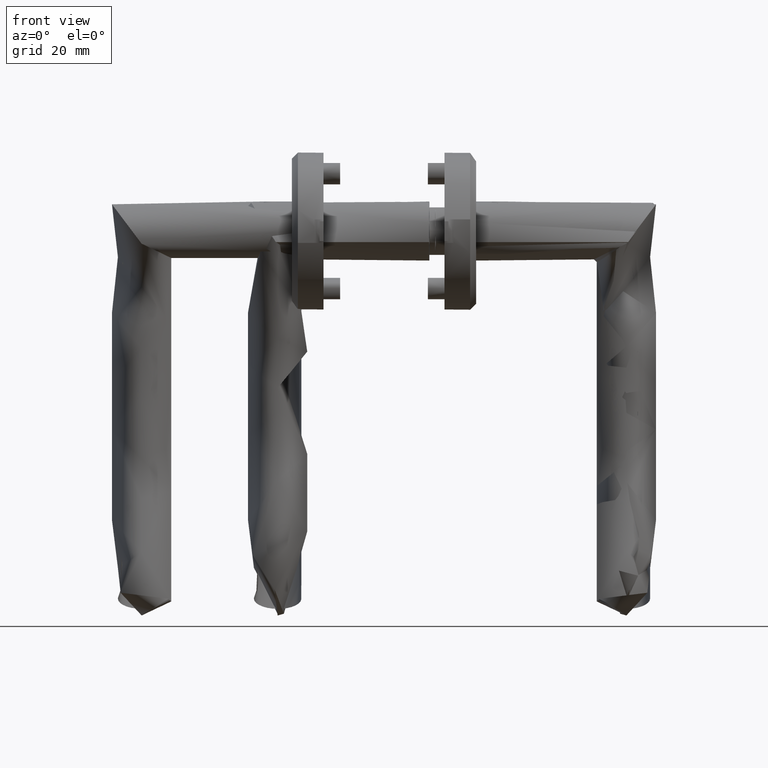
[diagram: clean part render]
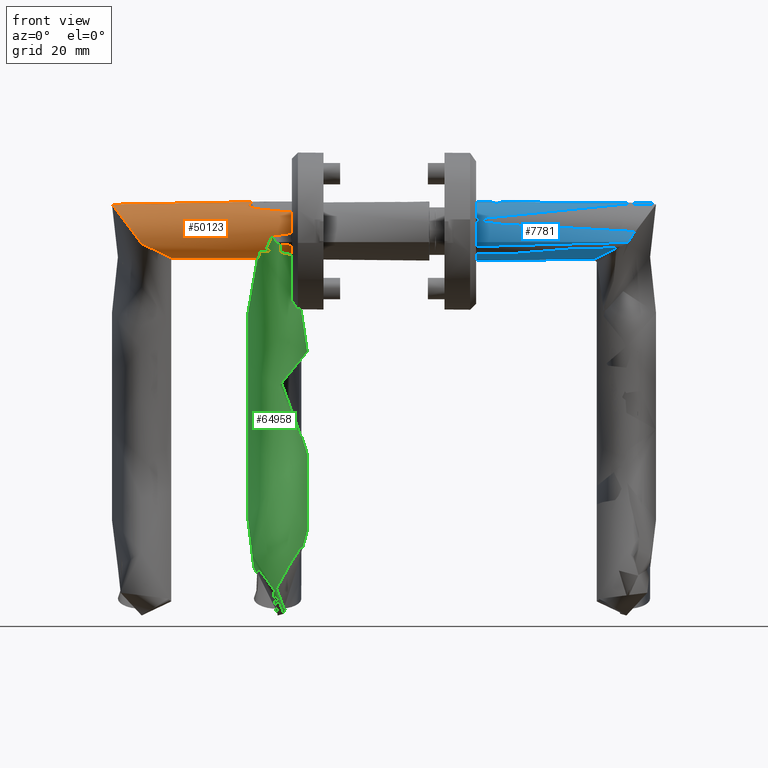
[diagram: same view with three faces highlighted in distinct colors, each labeled with its STEP entity id]
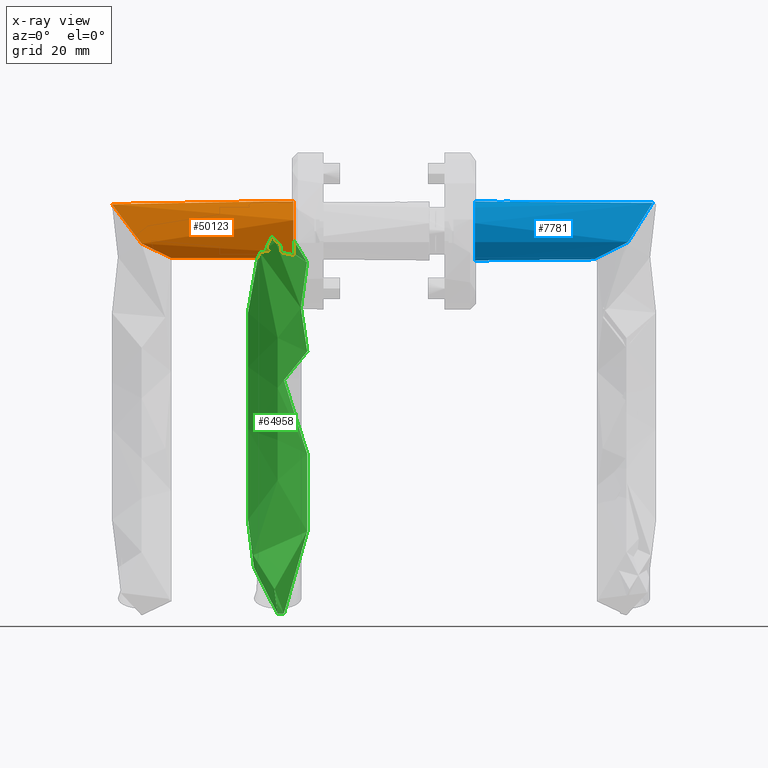
[diagram: x-ray of the same camera — body ghosted, the three highlighted faces saturated]
A machine part, front view with three faces highlighted in distinct colors.
The next image is the same camera in x-ray (body ghosted, the three faces saturated) — at least one of them is partly hidden behind the body in this view.
Their STEP definitions:

[orange] entity #50123 — the highlighted cylindrical surface (bore or boss wall) has radius 9.8 mm, axis along (1, -0, 0).
#177 = CARTESIAN_POINT ( 'NONE',  ( -10.37647058823528900, 21.90588235294118400, 40.40235294117649500 ) ) ;
#2644 = CARTESIAN_POINT ( 'NONE',  ( -0.2029243739203563400, 1.997646156598978700, 9.037793714554512200 ) ) ;
#3211 = CARTESIAN_POINT ( 'NONE',  ( -0.06198656234479537500, 1.110938121098266500, 9.745581607782954200 ) ) ;
#4046 = CARTESIAN_POINT ( 'NONE',  ( -0.07973867492358499600, -1.255165081136400600, 9.668275101107786500 ) ) ;
#4609 = CARTESIAN_POINT ( 'NONE',  ( -0.004208627328964136700, -0.3293675719675003300, 9.983646918597319300 ) ) ;
#4809 = FACE_BOUND ( 'NONE', #55713, .T. ) ;
#7937 = CYLINDRICAL_SURFACE ( 'NONE', #81682, 9.799999999999998900 ) ;
#8828 = EDGE_CURVE ( 'NONE', #19401, #19401, #36724, .T. ) ;
#10772 = CARTESIAN_POINT ( 'NONE',  ( -0.02035144488383974400, -0.6515257115221754200, 9.919193927932873600 ) ) ;
#11061 = CARTESIAN_POINT ( 'NONE',  ( -0.2603281164761319700, -2.244750030947460400, 6.387240606803052500 ) ) ;
#11352 = CARTESIAN_POINT ( 'NONE',  ( -0.2910079100899638500, -2.371352310552510300, 6.691405919002653100 ) ) ;
#11651 = CARTESIAN_POINT ( 'NONE',  ( -0.3242138757993612800, 2.499895465810964400, 7.665386559907910100 ) ) ;
#14252 = CARTESIAN_POINT ( 'NONE',  ( -18.67764705882352800, 4.150588235294116600, 40.40235294117649500 ) ) ;
#16518 = CARTESIAN_POINT ( 'NONE',  ( -9.799999999999995400, 0.0000000000000000000, 77.92093876368919300 ) ) ;
#17292 = CARTESIAN_POINT ( 'NONE',  ( -0.3199001735057092100, 2.483707475874418900, 7.171346478314733400 ) ) ;
#17475 = ORIENTED_EDGE ( 'NONE', *, *, #83461, .T. ) ;
#17567 = CARTESIAN_POINT ( 'NONE',  ( -0.3242687684830996000, 2.500103525782658500, 7.337788981417685500 ) ) ;
#17856 = CARTESIAN_POINT ( 'NONE',  ( -0.1393925503116200400, -1.651186141389335200, 5.615813830161471300 ) ) ;
#19401 = VERTEX_POINT ( 'NONE', #33472 ) ;
#20155 = CARTESIAN_POINT ( 'NONE',  ( -18.67764705882352800, 4.150588235294116600, 40.40235294117649500 ) ) ;
#21697 = ORIENTED_EDGE ( 'NONE', *, *, #8828, .F. ) ;
#24060 = CARTESIAN_POINT ( 'NONE',  ( -0.3197977296668103600, -2.483316765722874700, 7.168685763220800300 ) ) ;
#24337 = CARTESIAN_POINT ( 'NONE',  ( -0.2456095496539085200, -2.184076996224838800, 8.759517845260658600 ) ) ;
#24634 = CARTESIAN_POINT ( 'NONE',  ( -0.2912225103693265000, 2.372202668177645800, 6.693992381611523400 ) ) ;
#24694 = EDGE_CURVE ( 'NONE', #50831, #50831, #74904, .T. ) ;
#24865 = EDGE_LOOP ( 'NONE', ( #21697 ) ) ;
#29990 = CARTESIAN_POINT ( 'NONE',  ( 3.468905792015080300E-015, -2.032879073410320800E-016, 10.00000000000000000 ) ) ;
#30052 = DIRECTION ( 'NONE',  ( -1.000000000000000000, 0.0000000000000000000, 0.0000000000000000000 ) ) ;
#30268 = CARTESIAN_POINT ( 'NONE',  ( -0.2455063996937698300, 2.183613694649700700, 8.760048968757725900 ) ) ;
#30825 = CARTESIAN_POINT ( 'NONE',  ( -1.775902690805865100E-005, 0.1646096896668781100, 5.000069615391341300 ) ) ;
#31097 = CARTESIAN_POINT ( 'NONE',  ( -0.2422896661976796400, -2.167654281295329400, 6.243951638453012300 ) ) ;
#31399 = CARTESIAN_POINT ( 'NONE',  ( -0.06210011086397410800, -1.111831946282837000, 9.745084355556691900 ) ) ;
#31678 = CARTESIAN_POINT ( 'NONE',  ( -0.01731965858524867400, -0.6563310331507743500, 5.065752896236839200 ) ) ;
#31973 = CARTESIAN_POINT ( 'NONE',  ( -0.03243356118096827500, -0.8108701442688447400, 9.870456422184110700 ) ) ;
#33472 = CARTESIAN_POINT ( 'NONE',  ( -18.67764705882352800, 4.150588235294116600, 40.40235294117649500 ) ) ;
#34541 = CARTESIAN_POINT ( 'NONE',  ( -26.97882352941177000, -13.60470588235294900, 40.40235294117649500 ) ) ;
#35253 = ORIENTED_EDGE ( 'NONE', *, *, #24694, .T. ) ;
#36140 = CARTESIAN_POINT ( 'NONE',  ( -0.02022001733420706500, 0.6493377508243614000, 9.919721917401160400 ) ) ;
#36713 = CARTESIAN_POINT ( 'NONE',  ( -0.004206600728478565200, 0.3288885871912470800, 9.983651740766511300 ) ) ;
#36724 =( BOUNDED_CURVE ( )  B_SPLINE_CURVE ( 3, ( #20155, #34541, #47396, #61214, #74116, #177, #14252 ),
 .UNSPECIFIED., .T., .T. ) 
 B_SPLINE_CURVE_WITH_KNOTS ( ( 4, 3, 4 ),
 ( 0.0000000000000000000, 3.141592653589793100, 6.283185307179586200 ),
 .UNSPECIFIED. ) 
 CURVE ( )  GEOMETRIC_REPRESENTATION_ITEM ( )  RATIONAL_B_SPLINE_CURVE ( ( 1.000000000000000000, 0.3333333333333333700, 0.3333333333333333700, 1.000000000000000000, 0.3333333333333333700, 0.3333333333333333700, 1.000000000000000000 ) ) 
 REPRESENTATION_ITEM ( '' )  );
#36988 = CARTESIAN_POINT ( 'NONE',  ( -0.3199367370856959200, 2.483849845290462700, 7.828045674917985000 ) ) ;
#37835 = CARTESIAN_POINT ( 'NONE',  ( 3.534584799180115600E-005, -0.3260372883747063000, 4.999861444264219300 ) ) ;
#38124 = CARTESIAN_POINT ( 'NONE',  ( -0.07965136943626199800, -1.254433874869353800, 5.331351500414833700 ) ) ;
#38416 = CARTESIAN_POINT ( 'NONE',  ( -0.1395580363200274500, 1.652182753594114500, 5.616628229356955200 ) ) ;
#39829 = AXIS2_PLACEMENT_3D ( 'NONE', #49714, #84276, #56761 ) ;
#42877 = CARTESIAN_POINT ( 'NONE',  ( -0.1397732700690437500, 1.653369955951827300, 9.382210856315085200 ) ) ;
#43219 = DIRECTION ( 'NONE',  ( -1.232595164407829900E-031, -3.889170968374424700E-034, -1.000000000000000000 ) ) ;
#43425 = CARTESIAN_POINT ( 'NONE',  ( -0.03222526855719675500, 0.8084961451052986600, 9.871319094823029200 ) ) ;
#44259 = CARTESIAN_POINT ( 'NONE',  ( -0.1816699612569159500, -1.881881833777887300, 5.846188051856032100 ) ) ;
#44541 = CARTESIAN_POINT ( 'NONE',  ( 3.468905792015080300E-015, -2.032879073410320800E-016, 10.00000000000000000 ) ) ;
#44841 = CARTESIAN_POINT ( 'NONE',  ( -0.3199790666396050700, -2.484006566528220300, 7.826384042917132100 ) ) ;
#45135 = CARTESIAN_POINT ( 'NONE',  ( -0.3034912852203750500, -2.420208203775281200, 8.147616720294557500 ) ) ;
#45555 = VERTEX_POINT ( 'NONE', #82560 ) ;
#46917 = CARTESIAN_POINT ( 'NONE',  ( 0.0000000000000000000, -3.851859888774471700E-031, 1.207943261119674300E-030 ) ) ;
#47396 = CARTESIAN_POINT ( 'NONE',  ( -9.223529411764710400, -21.90588235294118400, 60.00235294117651800 ) ) ;
#49589 = CARTESIAN_POINT ( 'NONE',  ( -0.2909172645024526400, 2.370964932448639900, 8.309319672243979900 ) ) ;
#49714 = CARTESIAN_POINT ( 'NONE',  ( -9.799999999999998900, -3.851859888774471700E-031, 0.0000000000000000000 ) ) ;
#50123 = ADVANCED_FACE ( 'NONE', ( #4809, #63658, #83560 ), #7937, .T. ) ;
#50160 = CARTESIAN_POINT ( 'NONE',  ( -0.07963079918187614100, 1.254269749442054500, 9.668738777192357900 ) ) ;
#50831 = VERTEX_POINT ( 'NONE', #46917 ) ;
#50990 = CARTESIAN_POINT ( 'NONE',  ( -0.1399357609557985400, -1.654309899104501300, 9.381375368770465100 ) ) ;
#51858 = CARTESIAN_POINT ( 'NONE',  ( -0.1185305898498468100, -1.525756175294359100, 5.512864183120873600 ) ) ;
#52156 = CARTESIAN_POINT ( 'NONE',  ( -0.2030453551168132900, -1.998196917973325200, 9.037031931668057200 ) ) ;
#55713 = EDGE_LOOP ( 'NONE', ( #17475 ) ) ;
#56761 = DIRECTION ( 'NONE',  ( 1.000000000000000000, 0.0000000000000000000, 1.232595164407831200E-031 ) ) ;
#57760 = CARTESIAN_POINT ( 'NONE',  ( -0.02042295698647847400, 0.6525806098935187400, 5.081094393468567300 ) ) ;
#58042 = CARTESIAN_POINT ( 'NONE',  ( -0.004250202253370437300, 0.3305669260421774700, 5.016516299001494900 ) ) ;
#58634 = CARTESIAN_POINT ( 'NONE',  ( -0.03222695651067300500, 0.8084460640412494100, 5.128692549908183000 ) ) ;
#61214 = CARTESIAN_POINT ( 'NONE',  ( -0.9223529411764713700, -4.150588235294117500, 60.00235294117651100 ) ) ;
#63658 = FACE_OUTER_BOUND ( 'NONE', #80438, .T. ) ;
#63697 = CARTESIAN_POINT ( 'NONE',  ( -0.1184919881285157500, 1.525507332216829100, 9.487321782554582600 ) ) ;
#63968 = CARTESIAN_POINT ( 'NONE',  ( 3.467941115602912500E-015, 0.1658972328802211800, 9.999999999999998200 ) ) ;
#64229 = CARTESIAN_POINT ( 'NONE',  ( -0.2032424808274745600, 1.999407976831239200, 5.963915349630978500 ) ) ;
#64519 = CARTESIAN_POINT ( 'NONE',  ( -0.3242633206209095700, -2.500082876720870900, 7.663648044584552300 ) ) ;
#64812 = CARTESIAN_POINT ( 'NONE',  ( -0.3242194218421833900, -2.499916487007193500, 7.333829512370979100 ) ) ;
#65391 = CARTESIAN_POINT ( 'NONE',  ( -0.07993515577941769100, 1.256567421003659900, 5.332633428498498400 ) ) ;
#66732 = B_SPLINE_CURVE_WITH_KNOTS ( 'NONE', 3,
 ( #29990, #63968, #36713, #36140, #43425, #3211, #50160, #63697, #42877, #2644, #30268, #49589, #77155, #36988, #11651, #17567, #17292, #84742, #24634, #78573, #64229, #38416, #77995, #65391, #71524, #58634, #57760, #58042, #30825, #37835, #31678, #85026, #38124, #51858, #17856, #44259, #85321, #31097, #11061, #11352, #78282, #24060, #64812, #64519, #44841, #45135, #84441, #24337, #52156, #50990, #71247, #4046, #31399, #31973, #10772, #4609, #78850, #44541 ),
 .UNSPECIFIED., .T., .F.,
 ( 4, 2, 2, 2, 2, 2, 2, 2, 2, 2, 2, 2, 2, 2, 2, 2, 2, 2, 2, 2, 2, 2, 2, 2, 2, 2, 2, 2, 4 ),
 ( 0.0000000000000000000, 0.0004904772195936943700, 0.0009809544391873887400, 0.001471431658781083100, 0.001961908878374777500, 0.002942863317562167100, 0.003433340537155862300, 0.003923817756749557600, 0.004414294976343251900, 0.004904772195936948000, 0.005885726635124335900, 0.006376203854718029400, 0.006866681074311724700, 0.007357158293905418200, 0.007847635513499113400, 0.008828589952686500400, 0.009319067172280197400, 0.009809544391873890900, 0.01030002161146758400, 0.01079049883106127800, 0.01128097605065497500, 0.01177145327024866800, 0.01226193048984236500, 0.01275240770943606200, 0.01373336214862346300, 0.01422383936821716200, 0.01471431658781086100, 0.01520479380740456300, 0.01569527102699826100 ),
 .UNSPECIFIED. ) ;
#71247 = CARTESIAN_POINT ( 'NONE',  ( -0.1187946192721956900, -1.527475690427674100, 9.485868653798792800 ) ) ;
#71524 = CARTESIAN_POINT ( 'NONE',  ( -0.06190163135835800900, 1.110142076600780800, 5.254055069445101400 ) ) ;
#74116 = CARTESIAN_POINT ( 'NONE',  ( 7.378823529411769200, 13.60470588235294900, 60.00235294117651800 ) ) ;
#74904 = CIRCLE ( 'NONE', #39829, 9.799999999999998900 ) ;
#77155 = CARTESIAN_POINT ( 'NONE',  ( -0.3032711140302943900, 2.419349083781708200, 8.151056087896021700 ) ) ;
#77995 = CARTESIAN_POINT ( 'NONE',  ( -0.1186920950575914000, 1.526728367811465800, 5.513661652761619800 ) ) ;
#78282 = CARTESIAN_POINT ( 'NONE',  ( -0.3032269662662266900, -2.419173245366688100, 6.848668984835741800 ) ) ;
#78573 = CARTESIAN_POINT ( 'NONE',  ( -0.2454372364567526100, 2.183371196653806700, 6.238704896996669200 ) ) ;
#78850 = CARTESIAN_POINT ( 'NONE',  ( 3.469870468427248400E-015, -0.1658972328802227900, 10.00000000000000200 ) ) ;
#80438 = EDGE_LOOP ( 'NONE', ( #35253 ) ) ;
#81682 = AXIS2_PLACEMENT_3D ( 'NONE', #16518, #43219, #30052 ) ;
#82560 = CARTESIAN_POINT ( 'NONE',  ( 3.469446951953614200E-015, 7.703719777548943400E-031, 9.999999999999998200 ) ) ;
#83461 = EDGE_CURVE ( 'NONE', #45555, #45555, #66732, .T. ) ;
#83560 = FACE_OUTER_BOUND ( 'NONE', #24865, .T. ) ;
#84276 = DIRECTION ( 'NONE',  ( 1.232595164407829900E-031, 3.889170968374424700E-034, 1.000000000000000000 ) ) ;
#84441 = CARTESIAN_POINT ( 'NONE',  ( -0.2911054904295584100, -2.371722476732260000, 8.307203119019700200 ) ) ;
#84742 = CARTESIAN_POINT ( 'NONE',  ( -0.3033394374289584700, 2.419614371200402100, 6.850167515654158400 ) ) ;
#85026 = CARTESIAN_POINT ( 'NONE',  ( -0.06167895857551056900, -1.108153674358354000, 5.253095956472534100 ) ) ;
#85321 = CARTESIAN_POINT ( 'NONE',  ( -0.2030856745484991600, -1.986903957928885900, 5.974026464276211500 ) ) ;

[blue] entity #7781 — the highlighted cylindrical surface (bore or boss wall) has radius 9.8 mm, axis along (-1, 0, -0).
#81 = CARTESIAN_POINT ( 'NONE',  ( -0.2665957340604110900, 2.270287853063046600, -20.78784489366117300 ) ) ;
#152 = CARTESIAN_POINT ( 'NONE',  ( -0.02867509781934048100, 0.7505493011687339700, -19.82584320748121300 ) ) ;
#738 = CARTESIAN_POINT ( 'NONE',  ( -0.3938266027196801200, -2.750292126605634400, -21.65172133648702500 ) ) ;
#864 = CARTESIAN_POINT ( 'NONE',  ( -13.42798472969003900, -9.103720492256769600, -65.77151898276601100 ) ) ;
#1030 = CARTESIAN_POINT ( 'NONE',  ( -0.4015664376957385800, -2.776597058470639600, -23.26451573269789800 ) ) ;
#1319 = CARTESIAN_POINT ( 'NONE',  ( -0.2814475066035883000, -2.331816809591584800, -24.13457812664828600 ) ) ;
#1367 = CARTESIAN_POINT ( 'NONE',  ( -7.617751968627470800, 9.553941256338704900, -63.13283780220581300 ) ) ;
#1419 = CARTESIAN_POINT ( 'NONE',  ( -13.89806107909070000, -8.902931517116885000, -65.20663108066402500 ) ) ;
#1580 = CARTESIAN_POINT ( 'NONE',  ( -5.385912180460175100, 8.769337629820952900, -65.25987109393001600 ) ) ;
#1704 = CARTESIAN_POINT ( 'NONE',  ( -14.01349273249405800, -8.848880696767027500, -65.06569025379305100 ) ) ;
#1994 = CARTESIAN_POINT ( 'NONE',  ( -19.31273629619015600, -2.440833843308335200, -56.77159744832631100 ) ) ;
#2356 = CARTESIAN_POINT ( 'NONE',  ( -0.1358374785295681800, -1.626026678319338700, -24.98534449149281800 ) ) ;
#3043 = CARTESIAN_POINT ( 'NONE',  ( -7.545307705655054600, 9.537394017244999100, -63.19824494887707500 ) ) ;
#3599 = CARTESIAN_POINT ( 'NONE',  ( -0.9793105941366313500, -4.289047227513987300, -74.00962315087760100 ) ) ;
#3719 = CARTESIAN_POINT ( 'NONE',  ( -14.66819604864762600, 8.511492318511132600, -56.50381235991636700 ) ) ;
#3852 = ORIENTED_EDGE ( 'NONE', *, *, #85072, .F. ) ;
#3887 = CARTESIAN_POINT ( 'NONE',  ( -2.799284533487111000, -6.868849784574512900, -73.53230100718931800 ) ) ;
#4000 = CARTESIAN_POINT ( 'NONE',  ( -9.699395783089654400, 9.813729601892358500, -60.92997870149724100 ) ) ;
#4246 = CARTESIAN_POINT ( 'NONE',  ( -0.2008454525732274700, 1.975080745354364000, -20.47735410960980900 ) ) ;
#4273 = CARTESIAN_POINT ( 'NONE',  ( -18.69301374784851100, 4.135092398336113600, -54.39524788182166800 ) ) ;
#4276 = CARTESIAN_POINT ( 'NONE',  ( -0.1929373059344000100, -1.935031368449479500, -24.55589339382427400 ) ) ;
#5026 = CARTESIAN_POINT ( 'NONE',  ( -12.72162562869317300, -9.355573675756655700, -66.43961284877106300 ) ) ;
#5119 = CARTESIAN_POINT ( 'NONE',  ( -0.2294396843697693600, 2.109283595530441000, -20.60592159458670000 ) ) ;
#5424 = CARTESIAN_POINT ( 'NONE',  ( -0.01919402501473396700, -0.6148565921643337500, -19.79419528879930800 ) ) ;
#5721 = CARTESIAN_POINT ( 'NONE',  ( -0.1015769021179892100, -1.407968298235485100, -20.08184646799580600 ) ) ;
#6007 = CARTESIAN_POINT ( 'NONE',  ( -0.01366438926388031800, 0.5194346783140459900, -19.77588940199089500 ) ) ;
#6288 = CARTESIAN_POINT ( 'NONE',  ( -0.1396006422099559700, -1.648713413082127500, -20.22593168908560600 ) ) ;
#6579 = CARTESIAN_POINT ( 'NONE',  ( -0.01905418458241331400, 0.6125978255041015800, -19.79373128927139500 ) ) ;
#6706 = CARTESIAN_POINT ( 'NONE',  ( -0.3266068287380522500, 2.508948349944145800, -20.91063592046612400 ) ) ;
#6861 = CARTESIAN_POINT ( 'NONE',  ( -0.3266068287380522500, 2.508948349944145800, -20.91063592046612400 ) ) ;
#6869 = CARTESIAN_POINT ( 'NONE',  ( -0.4340117694934171300, -2.884140423698383400, -22.34121222021845900 ) ) ;
#7159 = CARTESIAN_POINT ( 'NONE',  ( -0.3749129102054529200, -2.684788303198720500, -23.52305128867939700 ) ) ;
#7447 = CARTESIAN_POINT ( 'NONE',  ( -0.4354261441127075200, -2.888729336560312200, -22.59309999756357400 ) ) ;
#7588 = CYLINDRICAL_SURFACE ( 'NONE', #53069, 9.799999999999998900 ) ;
#7737 = CARTESIAN_POINT ( 'NONE',  ( -0.3934437176815364600, -2.748983423422021000, -23.35218841818536700 ) ) ;
#7781 = ADVANCED_FACE ( 'NONE', ( #33929, #13924, #83209 ), #7588, .T. ) ;
#7832 = CARTESIAN_POINT ( 'NONE',  ( -19.59144834060527900, 0.5370363482065275700, -55.12400361044447500 ) ) ;
#8003 = CARTESIAN_POINT ( 'NONE',  ( -0.4441873624632212700, 2.917153011823024700, -21.64408661633135700 ) ) ;
#8012 = CARTESIAN_POINT ( 'NONE',  ( -0.2502628943426553600, -2.200786435756853600, -24.29415046508278000 ) ) ;
#8278 = CARTESIAN_POINT ( 'NONE',  ( -0.5734275340099176400, 3.368338894914437700, -71.33034004497140800 ) ) ;
#8393 = CIRCLE ( 'NONE', #78199, 9.799999999999998900 ) ;
#8399 = CARTESIAN_POINT ( 'NONE',  ( -16.45302851196022300, -7.214260927446207300, -61.85668215235927600 ) ) ;
#8694 = CARTESIAN_POINT ( 'NONE',  ( -13.42798472969003900, -9.103720492256769600, -65.77151898276601100 ) ) ;
#9756 = CARTESIAN_POINT ( 'NONE',  ( -0.5214741638414186500, -3.179520347139485700, -73.94929632526123000 ) ) ;
#10044 = CARTESIAN_POINT ( 'NONE',  ( -1.122588745628146900, 4.565645999247136500, -70.40771751123274700 ) ) ;
#10326 = CARTESIAN_POINT ( 'NONE',  ( -6.894485779167218300, 9.360554790898303800, -63.79729121426017000 ) ) ;
#10444 = CARTESIAN_POINT ( 'NONE',  ( -7.617751968627470800, 9.553941256338704900, -63.13283780220581300 ) ) ;
#10600 = CARTESIAN_POINT ( 'NONE',  ( -6.735034956623994000, -9.333304484761086400, -71.28553800021157400 ) ) ;
#11009 = CARTESIAN_POINT ( 'NONE',  ( -12.99922163627513800, 9.281077448439495100, -57.84632315409149300 ) ) ;
#11863 = CARTESIAN_POINT ( 'NONE',  ( -0.1590978592768241800, 1.760242406133283800, -20.30269441829413400 ) ) ;
#12079 = CARTESIAN_POINT ( 'NONE',  ( -12.86470430688764700, -9.309678439459141000, -66.30622022838834100 ) ) ;
#12172 = CARTESIAN_POINT ( 'NONE',  ( -0.02223141647305546000, -0.6613432827470348000, -19.80429193927309600 ) ) ;
#12476 = CARTESIAN_POINT ( 'NONE',  ( -0.007253928885105186800, 0.3777444201875369600, -19.75481907706747400 ) ) ;
#12768 = CARTESIAN_POINT ( 'NONE',  ( -0.07304081850272431400, 1.195051846377961800, -19.97876191759240400 ) ) ;
#13018 = CARTESIAN_POINT ( 'NONE',  ( -0.2665957340604110900, 2.270287853063046600, -20.78784489366117300 ) ) ;
#13066 = CARTESIAN_POINT ( 'NONE',  ( -0.2720221653179440400, -2.293774126995370200, -20.81442918592137700 ) ) ;
#13357 = CARTESIAN_POINT ( 'NONE',  ( -0.001406063127006498300, -0.1909599049352841100, -19.73570308273297200 ) ) ;
#13638 = CARTESIAN_POINT ( 'NONE',  ( -0.3602026486498832700, 2.632693129955990600, -21.02708365207348600 ) ) ;
#13648 = CARTESIAN_POINT ( 'NONE',  ( -0.4350075332013475500, -2.887371895598244800, -22.41012116865161700 ) ) ;
#13924 = FACE_OUTER_BOUND ( 'NONE', #29134, .T. ) ;
#14228 = CARTESIAN_POINT ( 'NONE',  ( -0.3825486915389393300, -2.711398250838428700, -21.54438756874919000 ) ) ;
#14321 = CARTESIAN_POINT ( 'NONE',  ( -13.66478189694541500, -9.006650603608102700, -65.48887468988624500 ) ) ;
#14326 = VERTEX_POINT ( 'NONE', #1367 ) ;
#14507 = CARTESIAN_POINT ( 'NONE',  ( -0.4167864816273205700, 2.831075690488484000, -23.50915437100354000 ) ) ;
#14515 = CARTESIAN_POINT ( 'NONE',  ( -0.4353642543823513200, -2.888528642383879000, -22.45596710192265300 ) ) ;
#14621 = CARTESIAN_POINT ( 'NONE',  ( -13.54593485576606900, -9.056715396193814300, -65.63135839814448500 ) ) ;
#14796 = CARTESIAN_POINT ( 'NONE',  ( -0.2883948702565742900, 2.361923797058720400, -24.41368706425024400 ) ) ;
#14803 = CARTESIAN_POINT ( 'NONE',  ( -0.2950250612150395700, -2.386553458605379200, -24.06031465086538300 ) ) ;
#15077 = CARTESIAN_POINT ( 'NONE',  ( -5.473336110722343900, -8.800395967683931200, -72.10533154076081500 ) ) ;
#15204 = CARTESIAN_POINT ( 'NONE',  ( -17.53606488038627700, -6.039760662326059100, -60.22305088003425100 ) ) ;
#15382 = CARTESIAN_POINT ( 'NONE',  ( -0.03915500700828466300, -0.8914022991006582700, -25.41170253443757700 ) ) ;
#15512 = EDGE_CURVE ( 'NONE', #69551, #41144, #65701, .T. ) ;
#15805 = CARTESIAN_POINT ( 'NONE',  ( -17.04047118051966300, 6.614224468190381700, -54.95184284729004500 ) ) ;
#16260 = B_SPLINE_CURVE_WITH_KNOTS ( 'NONE', 3,
 ( #41795, #3043, #43813, #35062, #44093, #10326, #43262, #63524, #1580, #21862, #49990, #70791, #68753, #48507, #57029, #57589, #56757, #70504, #10044, #77259, #8278, #37097, #16842, #83983, #55268, #50538, #36821, #70237, #30651, #16562, #64072, #9756, #82222, #3599, #57315, #23899, #37384, #28621, #3887, #17407, #23343, #83709, #30100, #75499, #15077, #50816, #10600, #64349, #35361, #68465, #76988, #28319, #43528, #58751, #51983, #24172, #5026, #12079, #71074, #64927, #78969, #45541, #44963 ),
 .UNSPECIFIED., .F., .F.,
 ( 4, 2, 1, 2, 2, 2, 2, 2, 2, 2, 2, 2, 2, 2, 2, 2, 2, 2, 2, 2, 2, 2, 2, 2, 2, 2, 2, 2, 2, 2, 2, 4 ),
 ( -1.995582135196951200E-005, 0.0002770301475496867700, 0.0005740161164513430400, 0.001167988054254657200, 0.002355931929861287300, 0.004731819681074516200, 0.005919763556681132400, 0.007107707432287748600, 0.009483595183500980900, 0.01067153905910759600, 0.01185948293471421000, 0.01423537068592743900, 0.01542331456153404700, 0.01661125843714065000, 0.01779920231274725500, 0.01898714618835386000, 0.02017509006396046900, 0.02136303393956707300, 0.02255097781517367800, 0.02373892169078028000, 0.02492686556638688800, 0.02611480944199349000, 0.02730275331760009100, 0.02849069719320669600, 0.03086658494441988500, 0.03205452882002647600, 0.03324247269563307400, 0.03561836044684622800, 0.03680630432245282600, 0.03740027626025612500, 0.03769726222915778500, 0.03799424819805945200 ),
 .UNSPECIFIED. ) ;
#16562 = CARTESIAN_POINT ( 'NONE',  ( -0.2036171050095948700, -2.026410683883246300, -73.75707865447142800 ) ) ;
#16842 = CARTESIAN_POINT ( 'NONE',  ( -0.1425555344582120600, 1.701806094877011100, -72.34058169367359900 ) ) ;
#17244 = CARTESIAN_POINT ( 'NONE',  ( -18.34574819629645100, 4.811950792318626200, -54.44092000000298300 ) ) ;
#17405 = DIRECTION ( 'NONE',  ( 1.000000000000000000, -1.110223024625214000E-016, 0.0000000000000000000 ) ) ;
#17407 = CARTESIAN_POINT ( 'NONE',  ( -3.077269468982103600, -7.140535603438770800, -73.41153415409529300 ) ) ;
#17778 = CARTESIAN_POINT ( 'NONE',  ( -0.1867072155686306200, 1.905269534121856000, -20.41678678453093100 ) ) ;
#17803 = CARTESIAN_POINT ( 'NONE',  ( -19.40523903273489700, 1.980162962623103900, -54.65334474794951800 ) ) ;
#18090 = CARTESIAN_POINT ( 'NONE',  ( -10.23575146741145400, 9.805688421904195100, -60.39486470332492700 ) ) ;
#18950 = CARTESIAN_POINT ( 'NONE',  ( -0.02206194236732904000, 0.6588185458004918200, -19.80372762437262000 ) ) ;
#19253 = CARTESIAN_POINT ( 'NONE',  ( -0.1074752261384600800, 1.447973206555557500, -20.10365596136614000 ) ) ;
#19555 = CARTESIAN_POINT ( 'NONE',  ( -0.05318743963084749500, -1.023380805563534300, -19.90913426839458800 ) ) ;
#19844 = CARTESIAN_POINT ( 'NONE',  ( -0.2403443646499721100, -2.157139337498125800, -20.65820482516147300 ) ) ;
#20131 = CARTESIAN_POINT ( 'NONE',  ( -0.2225533073475371200, -2.076937936258289200, -20.57498205291435100 ) ) ;
#20420 = CARTESIAN_POINT ( 'NONE',  ( -0.4155152033219169900, -2.823391397447142700, -23.08760934452949300 ) ) ;
#20722 = CARTESIAN_POINT ( 'NONE',  ( -0.4354513015783148000, -2.888810742463537600, -22.47886686590768700 ) ) ;
#21016 = CARTESIAN_POINT ( 'NONE',  ( -0.4059409346716552600, -2.791500434442387500, -21.78172192824411700 ) ) ;
#21112 = CARTESIAN_POINT ( 'NONE',  ( -18.81155323073130200, -3.862772969848643700, -57.93231607733212500 ) ) ;
#21310 = CARTESIAN_POINT ( 'NONE',  ( -0.2848630110393068300, -2.345712384467721000, -24.11621019863828500 ) ) ;
#21405 = CARTESIAN_POINT ( 'NONE',  ( -18.69113776149578500, -4.131631985510287200, -58.17775142243651500 ) ) ;
#21586 = CARTESIAN_POINT ( 'NONE',  ( -0.2080692784800354500, 2.012488515099534400, -24.78537197185170600 ) ) ;
#21594 = CARTESIAN_POINT ( 'NONE',  ( -0.2291604444187253500, -2.107147595400066900, -24.39461158042435000 ) ) ;
#21862 = CARTESIAN_POINT ( 'NONE',  ( -4.869530685079738900, 8.490005304839016300, -65.79174297147507400 ) ) ;
#22066 = CARTESIAN_POINT ( 'NONE',  ( -0.1929373059344000100, -1.935031368449479500, -24.55589339382427400 ) ) ;
#22435 = ORIENTED_EDGE ( 'NONE', *, *, #77295, .F. ) ;
#22742 = CARTESIAN_POINT ( 'NONE',  ( -0.09485132812936422600, -1.362027264048103500, -25.20436617303289500 ) ) ;
#23040 = CARTESIAN_POINT ( 'NONE',  ( -0.1358374785295681800, -1.626026678319338700, -24.98534449149281800 ) ) ;
#23343 = CARTESIAN_POINT ( 'NONE',  ( -3.646175345929135500, -7.636281596667744000, -73.14089604366813500 ) ) ;
#23899 = CARTESIAN_POINT ( 'NONE',  ( -1.572748619075754000, -5.339464290378887600, -73.93588838608161500 ) ) ;
#24172 = CARTESIAN_POINT ( 'NONE',  ( -12.28858926197968900, -9.483540686481532600, -66.83920107326470400 ) ) ;
#24262 = CARTESIAN_POINT ( 'NONE',  ( -0.1262063748307868900, 1.568207557001443500, -20.17421201197763400 ) ) ;
#24873 = CARTESIAN_POINT ( 'NONE',  ( -8.908137434409731300, 9.762911125324166100, -61.74652213294128700 ) ) ;
#25729 = CARTESIAN_POINT ( 'NONE',  ( -0.1076931886726533300, -1.449441978456862400, -20.10446379958152700 ) ) ;
#26029 = CARTESIAN_POINT ( 'NONE',  ( -0.06780781212792051600, 1.151683061303288700, -19.96029206677148700 ) ) ;
#26314 = CARTESIAN_POINT ( 'NONE',  ( -0.06806583748081862500, -1.153851716986418900, -19.96120105539827700 ) ) ;
#26602 = CARTESIAN_POINT ( 'NONE',  ( -0.2296680434073690400, -2.109456335934618600, -20.60773903720858200 ) ) ;
#26890 = CARTESIAN_POINT ( 'NONE',  ( -0.3246813756529400300, -2.502088986878614500, -21.11317050220955900 ) ) ;
#27173 = CARTESIAN_POINT ( 'NONE',  ( -0.3672707475661409800, 2.657858606397376800, -21.06135397351418300 ) ) ;
#27181 = CARTESIAN_POINT ( 'NONE',  ( -0.2642182706751825000, -2.260488135432544800, -24.22461218828901500 ) ) ;
#27472 = CARTESIAN_POINT ( 'NONE',  ( -0.3425962458914020300, -2.568665514437339100, -21.23229985607253700 ) ) ;
#27764 = CARTESIAN_POINT ( 'NONE',  ( -0.3801627589534333800, -2.703099307392501600, -21.52302659320513100 ) ) ;
#27858 = CARTESIAN_POINT ( 'NONE',  ( -18.43354358740340600, -4.645927106831681600, -58.67477950584061800 ) ) ;
#28052 = CARTESIAN_POINT ( 'NONE',  ( -0.4236475060613539300, -2.850274910001086700, -22.04706418957082900 ) ) ;
#28155 = CARTESIAN_POINT ( 'NONE',  ( -19.47331189667806200, 1.612244150757183600, -54.75227147589289000 ) ) ;
#28319 = CARTESIAN_POINT ( 'NONE',  ( -9.585931897118044300, -9.802493891467490200, -69.15177943446073500 ) ) ;
#28334 = CARTESIAN_POINT ( 'NONE',  ( -0.1299901964287721300, 1.597401643419155800, -25.07381598917117000 ) ) ;
#28344 = CARTESIAN_POINT ( 'NONE',  ( -0.3303988285038432200, -2.523327793568022500, -23.84876033481730300 ) ) ;
#28361 = CARTESIAN_POINT ( 'NONE',  ( 0.0000000000000000000, 3.370377402677662700E-029, -15.10000000000000300 ) ) ;
#28621 = CARTESIAN_POINT ( 'NONE',  ( -2.277206394349245300, -6.292749063239547500, -73.73337683732745500 ) ) ;
#28638 = CARTESIAN_POINT ( 'NONE',  ( -0.005972905203915883900, -0.3819557181864455300, -25.49530212416141600 ) ) ;
#29134 = EDGE_LOOP ( 'NONE', ( #32839, #3852 ) ) ;
#29225 = CARTESIAN_POINT ( 'NONE',  ( -0.1155786529497252300, -1.502335576334285200, -25.10635881301494300 ) ) ;
#30100 = CARTESIAN_POINT ( 'NONE',  ( -4.538373462026359400, -8.275740851733880600, -72.66276421564244000 ) ) ;
#30649 = CARTESIAN_POINT ( 'NONE',  ( -9.799999999999998900, 1.088018564132743000E-015, -15.10000000000000300 ) ) ;
#30651 = CARTESIAN_POINT ( 'NONE',  ( -0.1304632024768949700, -1.640572010885067000, -73.66548659239900600 ) ) ;
#30772 = CARTESIAN_POINT ( 'NONE',  ( -16.02141681401116800, 7.579302782769104000, -55.55134492824158300 ) ) ;
#31231 = CARTESIAN_POINT ( 'NONE',  ( -0.1358374785295681800, -1.626026678319338700, -24.98534449149281800 ) ) ;
#31629 = CARTESIAN_POINT ( 'NONE',  ( -8.128421866163227700, 9.657269891524265400, -62.57523467436325100 ) ) ;
#32487 = CARTESIAN_POINT ( 'NONE',  ( -0.1596861287146288700, -1.762330745475129800, -20.30561411585322400 ) ) ;
#32697 = CARTESIAN_POINT ( 'NONE',  ( -0.3266068287380522500, 2.508948349944145800, -20.91063592046612400 ) ) ;
#32777 = CARTESIAN_POINT ( 'NONE',  ( -0.04423760043587588600, 0.9311798192299420900, -19.87854287984390900 ) ) ;
#32839 = ORIENTED_EDGE ( 'NONE', *, *, #62450, .F. ) ;
#33078 = CARTESIAN_POINT ( 'NONE',  ( -0.1201854142969063500, -1.530644023442334400, -20.15132645571178200 ) ) ;
#33365 = CARTESIAN_POINT ( 'NONE',  ( -0.005535791579971399000, 0.3302057654056220200, -19.74919368902482500 ) ) ;
#33654 = CARTESIAN_POINT ( 'NONE',  ( -0.2509867493081142100, -2.203768786242425600, -20.70963843381236900 ) ) ;
#33662 = DIRECTION ( 'NONE',  ( -1.627025617018336800E-030, -2.295408554306642800E-030, 1.000000000000000000 ) ) ;
#33923 = CARTESIAN_POINT ( 'NONE',  ( -0.3872674020629950400, 2.728156726623720600, -21.16793840259397200 ) ) ;
#33929 = FACE_OUTER_BOUND ( 'NONE', #78972, .T. ) ;
#33933 = CARTESIAN_POINT ( 'NONE',  ( -0.1935971911785383000, -1.938305407521659700, -24.55305775501678800 ) ) ;
#34228 = CARTESIAN_POINT ( 'NONE',  ( -0.3894860936164775700, -2.735416870439171300, -21.60862134817380900 ) ) ;
#34514 = CARTESIAN_POINT ( 'NONE',  ( -0.4211843443672155200, -2.842166381543140400, -22.00246311311885300 ) ) ;
#34794 = CARTESIAN_POINT ( 'NONE',  ( -0.4296555286579134500, 2.870844139457214600, -21.47969382999610100 ) ) ;
#34801 = CARTESIAN_POINT ( 'NONE',  ( -0.3483915972703013900, -2.589891848398408600, -21.27260768274210500 ) ) ;
#35062 = CARTESIAN_POINT ( 'NONE',  ( -7.325502677200169900, 9.482747742327573400, -63.39847248621827400 ) ) ;
#35085 = CARTESIAN_POINT ( 'NONE',  ( -0.4335588396329249600, -2.882669490296343900, -22.31833521895510600 ) ) ;
#35361 = CARTESIAN_POINT ( 'NONE',  ( -8.325822171229230400, -9.693911253812114400, -70.13253409871698800 ) ) ;
#35488 = CARTESIAN_POINT ( 'NONE',  ( -14.35619317547276100, -8.680204267029701300, -64.64340796880340200 ) ) ;
#35777 = CARTESIAN_POINT ( 'NONE',  ( -17.85907985129310700, -5.603641820740170600, -59.69603978975837300 ) ) ;
#36821 = CARTESIAN_POINT ( 'NONE',  ( -0.005133821257956457600, -0.4896574578045445000, -73.31585945556778900 ) ) ;
#37097 = CARTESIAN_POINT ( 'NONE',  ( -0.3614394472041401200, 2.728201797803546700, -71.75662853524015400 ) ) ;
#37384 = CARTESIAN_POINT ( 'NONE',  ( -2.031504697475275300, -5.987322016377815400, -73.81460276602572900 ) ) ;
#38068 = CARTESIAN_POINT ( 'NONE',  ( -19.11197012739143000, 3.077520229152148600, -54.45072555031629900 ) ) ;
#39216 = CARTESIAN_POINT ( 'NONE',  ( -0.01134708414613680300, -0.4738107363315789400, -19.76825696394092800 ) ) ;
#39517 = CARTESIAN_POINT ( 'NONE',  ( -0.2083708198198524800, -2.010424316049001200, -20.51116778631171300 ) ) ;
#39801 = CARTESIAN_POINT ( 'NONE',  ( -0.2439060384547107100, -2.172859871631475300, -20.67526069517589700 ) ) ;
#40079 = CARTESIAN_POINT ( 'NONE',  ( -0.08981670551955942000, -1.324429532671890500, -20.03887165856254900 ) ) ;
#40377 = CARTESIAN_POINT ( 'NONE',  ( -0.08406406573085525900, 1.281033411569223900, -20.01816858243201100 ) ) ;
#40604 = CARTESIAN_POINT ( 'NONE',  ( -0.3058477286639252300, 2.430565262906623700, -20.86779312295589900 ) ) ;
#40678 = CARTESIAN_POINT ( 'NONE',  ( -0.1929373059344000100, -1.935031368449479500, -24.55589339382427400 ) ) ;
#41144 = VERTEX_POINT ( 'NONE', #6706 ) ;
#41243 = CARTESIAN_POINT ( 'NONE',  ( -0.4239308808689332100, -2.851263796681645000, -22.95404155826933800 ) ) ;
#41336 = CARTESIAN_POINT ( 'NONE',  ( -19.60488934049203300, -0.1581570951381904300, -55.42864472453454300 ) ) ;
#41538 = CARTESIAN_POINT ( 'NONE',  ( -0.3115371199072605700, -2.451469511565270900, -23.96546187037179000 ) ) ;
#41795 = CARTESIAN_POINT ( 'NONE',  ( -7.617751968627470800, 9.553941256338704900, -63.13283780220581300 ) ) ;
#41822 = CARTESIAN_POINT ( 'NONE',  ( -0.4318431337530502200, -2.877089312212008000, -22.24994925450545600 ) ) ;
#42105 = CARTESIAN_POINT ( 'NONE',  ( 0.001380951274240159500, -0.04228891407471775000, -25.49666447781834900 ) ) ;
#42214 = CARTESIAN_POINT ( 'NONE',  ( -19.13914576672387800, -3.029320540231933200, -57.21773086700667200 ) ) ;
#42455 = ORIENTED_EDGE ( 'NONE', *, *, #15512, .T. ) ;
#43262 = CARTESIAN_POINT ( 'NONE',  ( -6.471571300602238200, 9.222231721037369200, -64.19614840222425300 ) ) ;
#43528 = CARTESIAN_POINT ( 'NONE',  ( -10.50914743493590100, -9.793669204911909200, -68.39969866846512000 ) ) ;
#43813 = CARTESIAN_POINT ( 'NONE',  ( -7.471144822480581200, 9.519562768704416200, -63.26554500852409300 ) ) ;
#43928 = CARTESIAN_POINT ( 'NONE',  ( -15.21938707246005000, 8.171601924653161900, -56.09817325440223400 ) ) ;
#44093 = CARTESIAN_POINT ( 'NONE',  ( -7.108232710321364500, 9.425154403972694400, -63.59787168576587400 ) ) ;
#44493 = CARTESIAN_POINT ( 'NONE',  ( -16.28179985756912600, 7.358598628866060300, -55.38650054582461000 ) ) ;
#44963 = CARTESIAN_POINT ( 'NONE',  ( -13.42798472969003900, -9.103720492256769600, -65.77151898276601100 ) ) ;
#45346 = CARTESIAN_POINT ( 'NONE',  ( -0.2436629050864788400, 2.172594082629773800, -20.67289431936200500 ) ) ;
#45541 = CARTESIAN_POINT ( 'NONE',  ( -13.35940297602941700, -9.131051467018981100, -65.83747076682803400 ) ) ;
#45945 = CARTESIAN_POINT ( 'NONE',  ( -0.07327209365453174500, -1.196917697580780700, -19.97958285330505000 ) ) ;
#46229 = CARTESIAN_POINT ( 'NONE',  ( -0.05785225769160523600, 1.064187937599476900, -19.92546513104330700 ) ) ;
#46521 = CARTESIAN_POINT ( 'NONE',  ( -0.002708465040161933400, 0.2352235518717174200, -19.73995748850041200 ) ) ;
#46801 = CARTESIAN_POINT ( 'NONE',  ( -0.1462317541927834800, -1.687074313210782200, -20.25193158634494100 ) ) ;
#46942 = B_SPLINE_CURVE_WITH_KNOTS ( 'NONE', 3,
 ( #6861, #53834, #67923, #13638, #27173, #33923, #80802, #34794, #8003, #47365, #54709, #54129, #14507, #68194, #54994, #14796, #61761, #21586, #68485, #28334, #75231, #49688, #56154, #49404, #55582, #63212, #42105, #28638, #69354, #15382, #68771, #62341, #22742, #29225, #81950, #23040 ),
 .UNSPECIFIED., .F., .F.,
 ( 4, 2, 2, 2, 2, 2, 2, 2, 2, 2, 2, 2, 2, 2, 2, 2, 2, 4 ),
 ( 0.0000000000000000000, 0.0001302873494216119100, 0.0002605746988432238100, 0.0005211493976864388400, 0.001042298795372869700, 0.002084597590745731500, 0.003126896386118593400, 0.003648045783805024300, 0.004169195181491455200, 0.004690344579177886100, 0.005211493976864317100, 0.005732643374550748900, 0.006253792772237178900, 0.006774942169923609800, 0.007296091567610040800, 0.007817240965296472600, 0.008077815664139689800, 0.008338390362982907000 ),
 .UNSPECIFIED. ) ;
#47097 = CARTESIAN_POINT ( 'NONE',  ( -0.2079936070729688200, -2.008621316151880900, -24.49049978239124000 ) ) ;
#47365 = CARTESIAN_POINT ( 'NONE',  ( -0.4728882535578571900, 3.008161179475775000, -22.15418482201459200 ) ) ;
#47372 = CARTESIAN_POINT ( 'NONE',  ( -0.2916511668735419200, -2.373078475153964600, -24.07908267024684400 ) ) ;
#47674 = CARTESIAN_POINT ( 'NONE',  ( -0.4324744612414590500, -2.879143741322021100, -22.27270068583629100 ) ) ;
#47953 = ORIENTED_EDGE ( 'NONE', *, *, #52203, .F. ) ;
#47958 = CARTESIAN_POINT ( 'NONE',  ( -0.4347366256929612300, -2.886493277825841200, -22.38712403465859800 ) ) ;
#48247 = CARTESIAN_POINT ( 'NONE',  ( -0.2711540182447316800, -2.289527191736306000, -24.18905913396754300 ) ) ;
#48507 = CARTESIAN_POINT ( 'NONE',  ( -3.195095913670073600, 7.246152176742331400, -67.65188345537833900 ) ) ;
#48926 = CARTESIAN_POINT ( 'NONE',  ( -19.49025647685768800, -1.497125524326843300, -56.15866408466092000 ) ) ;
#49018 = VERTEX_POINT ( 'NONE', #864 ) ;
#49293 = VERTEX_POINT ( 'NONE', #31231 ) ;
#49404 = CARTESIAN_POINT ( 'NONE',  ( -0.01919338646303925900, 0.6351673930101715500, -25.40565578243945000 ) ) ;
#49688 = CARTESIAN_POINT ( 'NONE',  ( -0.06392008342943839000, 1.128700739346222700, -25.27828166660406600 ) ) ;
#49990 = CARTESIAN_POINT ( 'NONE',  ( -4.130672729988251700, 7.999134812021382300, -66.58933895093903700 ) ) ;
#50538 = CARTESIAN_POINT ( 'NONE',  ( 0.003745714287494523700, 0.2563939450103233700, -73.02966395633328000 ) ) ;
#50654 = CARTESIAN_POINT ( 'NONE',  ( -11.32823205237274200, 9.695664575619240100, -59.34529821661421100 ) ) ;
#50816 = CARTESIAN_POINT ( 'NONE',  ( -5.788138864745277200, -8.947687749470659900, -71.90629781645876100 ) ) ;
#50938 = CARTESIAN_POINT ( 'NONE',  ( -15.49021483022566100, 7.985819496609744700, -55.90716984907842100 ) ) ;
#51223 = CARTESIAN_POINT ( 'NONE',  ( -19.22506774966682400, 2.711044106743491200, -54.50286483404063600 ) ) ;
#51775 = B_SPLINE_CURVE_WITH_KNOTS ( 'NONE', 3,
 ( #57687, #71745, #72038, #45346, #5119, #4246, #17778, #11863, #64443, #24262, #77913, #19253, #73519, #72937, #80235, #40377, #66491, #12768, #26029, #46229, #60028, #32777, #86417, #79938, #152, #18950, #6579, #6007, #72630, #79356, #12476, #33365, #52375, #46521, #59736, #86122, #53543, #52961, #13357, #73236, #80519, #39216, #67070, #5424, #12172, #59138, #52662, #65907, #19555, #26314, #45945, #86991, #40079, #5721, #25729, #33078, #73798, #6288, #46801, #32487, #59445, #66205, #79656, #53261, #39517, #20131, #26602, #19844, #39801, #33654, #86706, #13066, #66788, #60311, #26890, #27472, #34801, #81381, #74382, #53844, #74658, #27764, #14228, #34228, #738, #21016, #68493, #34514, #28052, #67354, #68203, #41822, #47674, #35085, #6869, #47958, #13648, #14515, #20722, #7447, #81666, #60612, #41243, #20420, #81094, #67934, #54427, #1030, #61187, #7737, #67637, #81956, #7159, #55002, #61480, #28344, #54714, #41538, #74950, #14803, #47372, #21310, #1319, #48247, #27181, #8012, #61769, #21594, #75242, #47097, #74094, #33933, #80812, #40678 ),
 .UNSPECIFIED., .F., .F.,
 ( 4, 2, 2, 2, 2, 2, 2, 2, 2, 2, 2, 2, 2, 2, 2, 2, 2, 2, 2, 2, 2, 2, 2, 2, 2, 2, 2, 2, 2, 2, 2, 2, 2, 2, 2, 2, 2, 2, 2, 2, 2, 2, 2, 2, 2, 2, 2, 2, 2, 2, 2, 2, 2, 2, 2, 2, 2, 2, 2, 2, 2, 2, 2, 2, 2, 2, 4 ),
 ( 0.3559995288170734200, 0.3593749999999998900, 0.3749999999999998900, 0.3906249999999998900, 0.4062499999999999400, 0.4140624999999998900, 0.4218749999999998900, 0.4257812499999998900, 0.4296874999999999400, 0.4374999999999998300, 0.4453124999999998900, 0.4531249999999999400, 0.4609374999999998300, 0.4687499999999998900, 0.4765624999999999400, 0.4804687499999998900, 0.4843749999999998300, 0.4921874999999998900, 0.4999999999999998900, 0.5156250000000000000, 0.5234374999999998900, 0.5312500000000000000, 0.5390625000000000000, 0.5468749999999998900, 0.5625000000000000000, 0.5703125000000000000, 0.5781250000000000000, 0.5859375000000000000, 0.5937499999999998900, 0.6015624999999998900, 0.6093750000000000000, 0.6171874999999998900, 0.6250000000000000000, 0.6328125000000000000, 0.6367187500000000000, 0.6406249999999998900, 0.6562500000000000000, 0.6718750000000000000, 0.6796875000000000000, 0.6874999999999998900, 0.6914062500000000000, 0.6953125000000000000, 0.7031250000000000000, 0.7187500000000000000, 0.7265625000000000000, 0.7343749999999998900, 0.7382812500000000000, 0.7421875000000000000, 0.7460937500000000000, 0.7500000000000000000, 0.7656250000000000000, 0.7812500000000000000, 0.7890625000000000000, 0.7929687500000000000, 0.7968750000000000000, 0.8046875000000000000, 0.8125000000000000000, 0.8281250000000001100, 0.8359375000000000000, 0.8437500000000000000, 0.8476562500000000000, 0.8515625000000001100, 0.8593750000000001100, 0.8671875000000000000, 0.8750000000000001100, 0.8828125000000001100, 0.8831799737461909500 ),
 .UNSPECIFIED. ) ;
#51983 = CARTESIAN_POINT ( 'NONE',  ( -11.99652108734193400, -9.555403620597294500, -67.10325151206159000 ) ) ;
#52203 = EDGE_CURVE ( 'NONE', #69551, #80234, #51775, .T. ) ;
#52375 = CARTESIAN_POINT ( 'NONE',  ( -0.004763445294022252600, 0.3064428216724929300, -19.74666883420804800 ) ) ;
#52662 = CARTESIAN_POINT ( 'NONE',  ( -0.03252949300366429100, -0.7991104748723763000, -19.83880159870942400 ) ) ;
#52961 = CARTESIAN_POINT ( 'NONE',  ( -1.735444164810094100E-005, -0.09644877446417789200, -19.73119752019699300 ) ) ;
#53069 = AXIS2_PLACEMENT_3D ( 'NONE', #53853, #33662, #79945 ) ;
#53261 = CARTESIAN_POINT ( 'NONE',  ( -0.2013044384894182300, -1.976435668099729900, -20.48011669488800700 ) ) ;
#53543 = CARTESIAN_POINT ( 'NONE',  ( 8.434615604447266400E-006, 0.04555369567657216500, -19.73111382803337600 ) ) ;
#53767 = CARTESIAN_POINT ( 'NONE',  ( -0.2858233838726331700, 2.351027914050050500, -20.82683986264310100 ) ) ;
#53770 = ORIENTED_EDGE ( 'NONE', *, *, #83202, .T. ) ;
#53834 = CARTESIAN_POINT ( 'NONE',  ( -0.3365987195318268000, 2.546676153314767700, -20.93125726496008800 ) ) ;
#53844 = CARTESIAN_POINT ( 'NONE',  ( -0.3727258304983120400, -2.677049118094207500, -21.45921289980130100 ) ) ;
#53853 = CARTESIAN_POINT ( 'NONE',  ( -9.799999999999998900, 1.088018564132909500E-015, -92.92093876368913600 ) ) ;
#54129 = CARTESIAN_POINT ( 'NONE',  ( -0.4427291502075014800, 2.912679890119853600, -23.17857843744675300 ) ) ;
#54427 = CARTESIAN_POINT ( 'NONE',  ( -0.4053575530429351400, -2.789397381890146700, -23.22043670108433800 ) ) ;
#54437 = EDGE_CURVE ( 'NONE', #41144, #49293, #46942, .T. ) ;
#54709 = CARTESIAN_POINT ( 'NONE',  ( -0.4711808536839853800, 3.002558115010063300, -22.49614650684678500 ) ) ;
#54714 = CARTESIAN_POINT ( 'NONE',  ( -0.3242255245917307600, -2.500065757845636200, -23.88799071726568400 ) ) ;
#54807 = CARTESIAN_POINT ( 'NONE',  ( -19.56620961832630800, 0.8907547041553617300, -54.98777894249614200 ) ) ;
#54994 = CARTESIAN_POINT ( 'NONE',  ( -0.3367607074705453200, 2.548807222918273200, -24.13234659418006300 ) ) ;
#55002 = CARTESIAN_POINT ( 'NONE',  ( -0.3595350534805896200, -2.630407008354449500, -23.64817413342713000 ) ) ;
#55268 = CARTESIAN_POINT ( 'NONE',  ( -0.01310333882767737700, 0.6233670525653058900, -72.87142090348864100 ) ) ;
#55582 = CARTESIAN_POINT ( 'NONE',  ( -0.009605901700549038900, 0.4656750425354679300, -25.43706278474030600 ) ) ;
#55686 = CARTESIAN_POINT ( 'NONE',  ( -16.83367041463699800, -6.844917033097436500, -61.30266599077741300 ) ) ;
#55973 = CARTESIAN_POINT ( 'NONE',  ( -18.84619342793115800, 3.788179362005711600, -54.39728201393845800 ) ) ;
#56154 = CARTESIAN_POINT ( 'NONE',  ( -0.04635156657310746800, 0.9664149552137600900, -25.32694627309009100 ) ) ;
#56757 = CARTESIAN_POINT ( 'NONE',  ( -1.608409494192063200, 5.388380008468501200, -69.68479748308841700 ) ) ;
#57029 = CARTESIAN_POINT ( 'NONE',  ( -2.543680294245430400, 6.614509941059839800, -68.43448855947437400 ) ) ;
#57114 = VERTEX_POINT ( 'NONE', #28361 ) ;
#57315 = CARTESIAN_POINT ( 'NONE',  ( -1.358815589964635700, -4.994686523730157600, -73.97574683414026700 ) ) ;
#57428 = CARTESIAN_POINT ( 'NONE',  ( -17.51100355188396300, 6.059109873106535800, -54.72457866856291300 ) ) ;
#57587 = DIRECTION ( 'NONE',  ( -1.627025617018336800E-030, -2.295408554306642800E-030, 1.000000000000000000 ) ) ;
#57589 = CARTESIAN_POINT ( 'NONE',  ( -2.145825268323129800, 6.151486462553761700, -68.94319573449823200 ) ) ;
#57687 = CARTESIAN_POINT ( 'NONE',  ( -0.2665957340604110900, 2.270287853063046600, -20.78784489366117300 ) ) ;
#57991 = CARTESIAN_POINT ( 'NONE',  ( -7.743303045506882800, 9.582618802390715700, -62.99434149282561200 ) ) ;
#58284 = CARTESIAN_POINT ( 'NONE',  ( -17.73337762820563800, 5.765556636300512800, -54.63134279629936400 ) ) ;
#58751 = CARTESIAN_POINT ( 'NONE',  ( -11.11145372485541200, -9.730460527961115600, -67.88727704416909600 ) ) ;
#59138 = CARTESIAN_POINT ( 'NONE',  ( -0.02889975741057460000, -0.7534809534380023700, -19.82659709484860500 ) ) ;
#59445 = CARTESIAN_POINT ( 'NONE',  ( -0.1665094292675998200, -1.799226249749871000, -20.33329677253231800 ) ) ;
#59736 = CARTESIAN_POINT ( 'NONE',  ( -0.001683992821041712700, 0.1877550158102012600, -19.73662097355015600 ) ) ;
#60028 = CARTESIAN_POINT ( 'NONE',  ( -0.05313283894182706900, 1.020086492973846700, -19.90911929579585400 ) ) ;
#60256 = B_SPLINE_CURVE_WITH_KNOTS ( 'NONE', 3,
 ( #2356, #75417, #62547, #22066 ),
 .UNSPECIFIED., .F., .F.,
 ( 4, 4 ),
 ( 0.0000000000000000000, 0.0005321329516538065900 ),
 .UNSPECIFIED. ) ;
#60311 = CARTESIAN_POINT ( 'NONE',  ( -0.3120329690799819600, -2.453847657405817900, -21.03613933177234000 ) ) ;
#60612 = CARTESIAN_POINT ( 'NONE',  ( -0.4282051718031633600, -2.865232567754285100, -22.86438503943636700 ) ) ;
#61187 = CARTESIAN_POINT ( 'NONE',  ( -0.3995876260023492600, -2.769891698722192000, -23.28654442755861700 ) ) ;
#61280 = CARTESIAN_POINT ( 'NONE',  ( -14.57987283916453200, -8.559064623941900200, -64.36260582068490500 ) ) ;
#61480 = CARTESIAN_POINT ( 'NONE',  ( -0.3483417675825920000, -2.590034519686809300, -23.72958997141065000 ) ) ;
#61761 = CARTESIAN_POINT ( 'NONE',  ( -0.2618167643312722700, 2.253509607845965300, -24.54665637426575500 ) ) ;
#61769 = CARTESIAN_POINT ( 'NONE',  ( -0.2432413308560131300, -2.170116267572041100, -24.32814643316159200 ) ) ;
#62341 = CARTESIAN_POINT ( 'NONE',  ( -0.08468057270798336200, -1.287883711185566100, -25.24688870521093500 ) ) ;
#62450 = EDGE_CURVE ( 'NONE', #14326, #49018, #16260, .T. ) ;
#62547 = CARTESIAN_POINT ( 'NONE',  ( -0.1745433166667566800, -1.843708507061456100, -24.70752292467335900 ) ) ;
#62756 = CARTESIAN_POINT ( 'NONE',  ( -13.55508216565368900, 9.073170247684831900, -57.37797561710477400 ) ) ;
#63212 = CARTESIAN_POINT ( 'NONE',  ( 0.0006373989321030034600, 0.1271865555415001600, -25.48317577926423600 ) ) ;
#63524 = CARTESIAN_POINT ( 'NONE',  ( -6.195724396992182500, 9.117870410006030800, -64.46207720310562200 ) ) ;
#64072 = CARTESIAN_POINT ( 'NONE',  ( -0.3984683595554142600, -2.794299150187741000, -73.89889749791861100 ) ) ;
#64349 = CARTESIAN_POINT ( 'NONE',  ( -7.369592096239189000, -9.515964485633341900, -70.84040616798429800 ) ) ;
#64443 = CARTESIAN_POINT ( 'NONE',  ( -0.1456302739882343600, 1.685046442613779700, -20.24918996526401200 ) ) ;
#64466 = CARTESIAN_POINT ( 'NONE',  ( -11.88717308383402500, 9.592555769974019600, -58.82849681296784900 ) ) ;
#64927 = CARTESIAN_POINT ( 'NONE',  ( -13.14803533672297900, -9.210661399881903600, -66.03899601591555800 ) ) ;
#65049 = CARTESIAN_POINT ( 'NONE',  ( -16.79063701577879900, 6.877041317889238700, -55.08700684919099200 ) ) ;
#65701 = B_SPLINE_CURVE_WITH_KNOTS ( 'NONE', 3,
 ( #81, #53767, #40604, #32697 ),
 .UNSPECIFIED., .F., .F.,
 ( 4, 4 ),
 ( 0.0008556266802466830500, 0.001130209657857150100 ),
 .UNSPECIFIED. ) ;
#65907 = CARTESIAN_POINT ( 'NONE',  ( -0.04425508233579315100, -0.9347057473859699000, -19.87852073204256700 ) ) ;
#66205 = CARTESIAN_POINT ( 'NONE',  ( -0.1803011602358328100, -1.871563518616436800, -20.39034147909427100 ) ) ;
#66491 = CARTESIAN_POINT ( 'NONE',  ( -0.08126689874784047400, 1.259642083548924400, -20.00812920116104400 ) ) ;
#66788 = CARTESIAN_POINT ( 'NONE',  ( -0.2857045820321185700, -2.349694975233640500, -20.88677060415802700 ) ) ;
#67070 = CARTESIAN_POINT ( 'NONE',  ( -0.01374012669124470400, -0.5208960607164171400, -19.77613907468695200 ) ) ;
#67354 = CARTESIAN_POINT ( 'NONE',  ( -0.4278985790788039100, -2.864222075944120600, -22.13677775209748300 ) ) ;
#67637 = CARTESIAN_POINT ( 'NONE',  ( -0.3890695075228320900, -2.733983601625779200, -23.39540623510707800 ) ) ;
#67923 = CARTESIAN_POINT ( 'NONE',  ( -0.3447311947213093100, 2.576575046645805500, -20.96274213100175700 ) ) ;
#67934 = CARTESIAN_POINT ( 'NONE',  ( -0.4071737099729960700, -2.795505527345765600, -23.19834700010334000 ) ) ;
#68028 = CARTESIAN_POINT ( 'NONE',  ( -19.53557803036346400, -1.171395038491316500, -55.96331582722336200 ) ) ;
#68194 = CARTESIAN_POINT ( 'NONE',  ( -0.3588852134744556200, 2.628739804889486600, -23.98234553029475400 ) ) ;
#68203 = CARTESIAN_POINT ( 'NONE',  ( -0.4296865112935915300, -2.870060834709869300, -22.18189021176603900 ) ) ;
#68465 = CARTESIAN_POINT ( 'NONE',  ( -8.645597729283030800, -9.736893069969655200, -69.88951137858930500 ) ) ;
#68485 = CARTESIAN_POINT ( 'NONE',  ( -0.1811596632402202900, 1.881141192862695500, -24.89049995647425100 ) ) ;
#68493 = CARTESIAN_POINT ( 'NONE',  ( -0.4128195109854194100, -2.814465312336587000, -21.86941861896889700 ) ) ;
#68753 = CARTESIAN_POINT ( 'NONE',  ( -3.422309747664053600, 7.446831600832251900, -67.38672239584744300 ) ) ;
#68771 = CARTESIAN_POINT ( 'NONE',  ( -0.05579498174156610100, -1.055827956422503000, -25.35908179207018500 ) ) ;
#68880 = CARTESIAN_POINT ( 'NONE',  ( -15.65539212080153000, -7.875451239255318600, -62.96508471185814700 ) ) ;
#69354 = CARTESIAN_POINT ( 'NONE',  ( -0.01417952829104028200, -0.5535437936922543700, -25.48017037244677900 ) ) ;
#69465 = CARTESIAN_POINT ( 'NONE',  ( -8.646613269687579300, 9.735419124853885700, -62.02103212588065200 ) ) ;
#69551 = VERTEX_POINT ( 'NONE', #13018 ) ;
#70237 = CARTESIAN_POINT ( 'NONE',  ( -0.03082738459021307900, -0.8687259705340705200, -73.44383637626580700 ) ) ;
#70450 = EDGE_LOOP ( 'NONE', ( #42455, #74225, #53770, #47953 ) ) ;
#70504 = CARTESIAN_POINT ( 'NONE',  ( -1.439229202252881600, 5.122509261629471000, -69.92839882363765000 ) ) ;
#70791 = CARTESIAN_POINT ( 'NONE',  ( -3.890374624243459100, 7.823462261947018000, -66.85516927975649500 ) ) ;
#71074 = CARTESIAN_POINT ( 'NONE',  ( -13.07743819302750100, -9.236018090853935500, -66.10583866492665100 ) ) ;
#71477 = CARTESIAN_POINT ( 'NONE',  ( -7.871824167378794500, 9.609327404858151000, -62.85368328790610800 ) ) ;
#71745 = CARTESIAN_POINT ( 'NONE',  ( -0.2636122436230594600, 2.257759208234750000, -20.77258370378136800 ) ) ;
#71771 = CARTESIAN_POINT ( 'NONE',  ( -8.257597841798284900, 9.678748225051256400, -62.43621451952704900 ) ) ;
#72038 = CARTESIAN_POINT ( 'NONE',  ( -0.2606138351428909900, 2.245058295105359900, -20.75744305849001800 ) ) ;
#72630 = CARTESIAN_POINT ( 'NONE',  ( -0.01128261869853519400, 0.4724933775240278700, -19.76804473236282400 ) ) ;
#72937 = CARTESIAN_POINT ( 'NONE',  ( -0.09263656116340970900, 1.344447250650883100, -20.04917789404192200 ) ) ;
#73236 = CARTESIAN_POINT ( 'NONE',  ( -0.005528016052346856200, -0.3324849689355438600, -19.74916630617640600 ) ) ;
#73519 = CARTESIAN_POINT ( 'NONE',  ( -0.1014341409425784700, 1.406979767450736300, -20.08132138024325600 ) ) ;
#73798 = CARTESIAN_POINT ( 'NONE',  ( -0.1265781021484555500, -1.570503208225192800, -20.17563128827036300 ) ) ;
#74094 = CARTESIAN_POINT ( 'NONE',  ( -0.2009454538025664300, -1.974692087047077200, -24.52144967292827700 ) ) ;
#74225 = ORIENTED_EDGE ( 'NONE', *, *, #54437, .T. ) ;
#74382 = CARTESIAN_POINT ( 'NONE',  ( -0.3649720839312234300, -2.649643095742419100, -21.39595713059800600 ) ) ;
#74658 = CARTESIAN_POINT ( 'NONE',  ( -0.3752541033555834000, -2.685934591800687600, -21.48046147201728600 ) ) ;
#74756 = CARTESIAN_POINT ( 'NONE',  ( -15.23658689555503400, -8.169615003699076900, -63.52236790239354700 ) ) ;
#74950 = CARTESIAN_POINT ( 'NONE',  ( -0.3050221956967564300, -2.426135949312188300, -24.00370067988173200 ) ) ;
#75231 = CARTESIAN_POINT ( 'NONE',  ( -0.1056011626953387300, 1.443554184682852600, -25.15216787031093700 ) ) ;
#75242 = CARTESIAN_POINT ( 'NONE',  ( -0.2221010838481360900, -2.074849075677686300, -24.42708073744395100 ) ) ;
#75417 = CARTESIAN_POINT ( 'NONE',  ( -0.1552055753873477800, -1.741139448768253900, -24.85094085243367700 ) ) ;
#75499 = CARTESIAN_POINT ( 'NONE',  ( -4.845592992287856200, -8.462909712429857100, -72.48530607577190200 ) ) ;
#75850 = B_SPLINE_CURVE_WITH_KNOTS ( 'NONE', 3,
 ( #8694, #14621, #14321, #1419, #1704, #35488, #61280, #74756, #68880, #8399, #55686, #15204, #35777, #82348, #27858, #21405, #21112, #42214, #1994, #48926, #68028, #81475, #41336, #7832, #54807, #28155, #17803, #51223, #38068, #55973, #4273, #17244, #77939, #58284, #57428, #15805, #65049, #44493, #30772, #50938, #43928, #3719, #84977, #62756, #11009, #64466, #50654, #18090, #4000, #24873, #69465, #71771, #31629, #71477, #57991, #10444 ),
 .UNSPECIFIED., .F., .F.,
 ( 4, 2, 2, 2, 2, 2, 2, 2, 2, 2, 2, 2, 2, 2, 2, 2, 2, 2, 2, 2, 2, 2, 2, 2, 2, 2, 2, 4 ),
 ( -2.066882676151877300E-005, 0.0005466936978024156800, 0.001114056222366350100, 0.002248781271494222100, 0.004518231369749969500, 0.006787681468005701300, 0.009057131566261433100, 0.01019185661538929800, 0.01132658166451716200, 0.01359603176277288800, 0.01473075681190075600, 0.01586548186102862800, 0.01700020691015649600, 0.01813493195928436400, 0.01926965700841223200, 0.02040438205754010300, 0.02153910710666797100, 0.02267383215579583900, 0.02380855720492371100, 0.02494328225405157900, 0.02607800730317944400, 0.02721273235230731200, 0.02948218245056305100, 0.03175163254881879100, 0.03402108264707452000, 0.03515580769620239200, 0.03572317022076631300, 0.03629053274533024200 ),
 .UNSPECIFIED. ) ;
#76988 = CARTESIAN_POINT ( 'NONE',  ( -9.274879718918683100, -9.791015266511260900, -69.39969662581755500 ) ) ;
#77259 = CARTESIAN_POINT ( 'NONE',  ( -0.9745169616922974000, 4.273135351920528200, -70.64453529643093100 ) ) ;
#77295 = EDGE_CURVE ( 'NONE', #57114, #57114, #8393, .T. ) ;
#77913 = CARTESIAN_POINT ( 'NONE',  ( -0.1198611630433403200, 1.528585985209369300, -20.15010069627336600 ) ) ;
#77939 = CARTESIAN_POINT ( 'NONE',  ( -18.15007455823955600, 5.143576459035386100, -54.48947270577291800 ) ) ;
#78199 = AXIS2_PLACEMENT_3D ( 'NONE', #30649, #57587, #17405 ) ;
#78969 = CARTESIAN_POINT ( 'NONE',  ( -13.28860245839671000, -9.158344660826466900, -65.90521322820757200 ) ) ;
#78972 = EDGE_LOOP ( 'NONE', ( #22435 ) ) ;
#79356 = CARTESIAN_POINT ( 'NONE',  ( -0.008200314082583202600, 0.4015245385265089900, -19.75792158942465100 ) ) ;
#79656 = CARTESIAN_POINT ( 'NONE',  ( -0.1872696276873317100, -1.907005278950113500, -20.41970352583751600 ) ) ;
#79938 = CARTESIAN_POINT ( 'NONE',  ( -0.03228051823536218900, 0.7960593225584129400, -19.83796249333450100 ) ) ;
#79945 = DIRECTION ( 'NONE',  ( -1.000000000000000000, 1.110223024625213700E-016, 0.0000000000000000000 ) ) ;
#80234 = VERTEX_POINT ( 'NONE', #4276 ) ;
#80235 = CARTESIAN_POINT ( 'NONE',  ( -0.08974723087076161300, 1.323422857972870400, -20.03868697823448400 ) ) ;
#80519 = CARTESIAN_POINT ( 'NONE',  ( -0.007242066056647786400, -0.3796229936344693300, -19.75477394435066000 ) ) ;
#80802 = CARTESIAN_POINT ( 'NONE',  ( -0.3990183993921500600, 2.768179969072868100, -21.24468241913340100 ) ) ;
#80812 = CARTESIAN_POINT ( 'NONE',  ( -0.1932671471680540200, -1.936668967046527400, -24.55447601809639500 ) ) ;
#81094 = CARTESIAN_POINT ( 'NONE',  ( -0.4123730831430560400, -2.812935779322687700, -23.13200959351073000 ) ) ;
#81381 = CARTESIAN_POINT ( 'NONE',  ( -0.3595804789232626100, -2.630384095085601900, -21.35444386333503500 ) ) ;
#81475 = CARTESIAN_POINT ( 'NONE',  ( -19.59305999910305500, -0.4996216323035206400, -55.59708888578621400 ) ) ;
#81666 = CARTESIAN_POINT ( 'NONE',  ( -0.4339530273221058900, -2.883966041216511600, -22.68393207892454900 ) ) ;
#81950 = CARTESIAN_POINT ( 'NONE',  ( -0.1263517706521580800, -1.569649114677485100, -25.05116993974830600 ) ) ;
#81956 = CARTESIAN_POINT ( 'NONE',  ( -0.3798035388175567400, -2.701884098673279500, -23.48084303796174100 ) ) ;
#82222 = CARTESIAN_POINT ( 'NONE',  ( -0.8118502699250741400, -3.926010157894440400, -74.00434490088243000 ) ) ;
#82348 = CARTESIAN_POINT ( 'NONE',  ( -18.29592177232525400, -4.892515269745859800, -58.92735034596975700 ) ) ;
#83202 = EDGE_CURVE ( 'NONE', #49293, #80234, #60256, .T. ) ;
#83209 = FACE_BOUND ( 'NONE', #70450, .T. ) ;
#83709 = CARTESIAN_POINT ( 'NONE',  ( -3.938718995059291100, -7.862441443424981600, -72.99052057817259300 ) ) ;
#83983 = CARTESIAN_POINT ( 'NONE',  ( -0.08610084027925148100, 1.346141097161233800, -72.52697888887780700 ) ) ;
#84977 = CARTESIAN_POINT ( 'NONE',  ( -14.38881452601115300, 8.664787726738932600, -56.71781658771479300 ) ) ;
#85072 = EDGE_CURVE ( 'NONE', #49018, #14326, #75850, .T. ) ;
#86122 = CARTESIAN_POINT ( 'NONE',  ( -0.0003258721520461689500, 0.09292748700715312800, -19.73220017232714700 ) ) ;
#86417 = CARTESIAN_POINT ( 'NONE',  ( -0.04006175861175296400, 0.8863745832421906500, -19.86431232714258900 ) ) ;
#86706 = CARTESIAN_POINT ( 'NONE',  ( -0.2545108586162110900, -2.218981036692640800, -20.72698297157221600 ) ) ;
#86991 = CARTESIAN_POINT ( 'NONE',  ( -0.08414623094421755400, -1.282198635984773200, -20.01841336498895900 ) ) ;

[green] entity #64958 — the highlighted face is a freeform B-spline surface patch.
#561 = CARTESIAN_POINT ( 'NONE',  ( -18.39125158037294100, -5.402400699559466400, 45.26326300112623400 ) ) ;
#1246 = CARTESIAN_POINT ( 'NONE',  ( -0.8592531995585202000, 0.9321315283208297900, 58.79106484013172500 ) ) ;
#1532 = CARTESIAN_POINT ( 'NONE',  ( -6.330456730249066400, 9.149353989385865300, 49.60847600018389900 ) ) ;
#1825 = CARTESIAN_POINT ( 'NONE',  ( -1.296645043736018200, 3.611534631761697400, 57.11563046161754900 ) ) ;
#2064 = CARTESIAN_POINT ( 'NONE',  ( -141.5432802768166000, 13.99534948096887500, 60.00235294117646100 ) ) ;
#2112 = CARTESIAN_POINT ( 'NONE',  ( -0.9460448603407860500, 1.987278909157718100, 58.21432464640943700 ) ) ;
#2392 = CARTESIAN_POINT ( 'NONE',  ( -5.312438232259412800, -7.968190928313147100, 58.47456307434131200 ) ) ;
#2627 = CARTESIAN_POINT ( 'NONE',  ( -109.6647287839631300, 5.839933969572132200, 40.40235294117646700 ) ) ;
#2918 = CARTESIAN_POINT ( 'NONE',  ( -115.2731289386131700, -19.44311060882758100, 60.00235294117646100 ) ) ;
#2960 = CARTESIAN_POINT ( 'NONE',  ( -7.354237453421962600, 9.489354097761674800, 48.42765605790003000 ) ) ;
#3107 = CARTESIAN_POINT ( 'NONE',  ( -132.0418307955018000, -3.972891273257364000, 40.41921667121529500 ) ) ;
#3197 = CARTESIAN_POINT ( 'NONE',  ( -30.79152216849348600, 7.359433351636870000, 40.40235294117649500 ) ) ;
#3237 = CARTESIAN_POINT ( 'NONE',  ( -7.617751968627468200, 9.553941256338701400, 48.13283780220578500 ) ) ;
#3390 = CARTESIAN_POINT ( 'NONE',  ( -128.2641441052516000, -12.39656519778822900, 50.84784886990083700 ) ) ;
#3671 = CARTESIAN_POINT ( 'NONE',  ( -132.5550168207088600, -2.849174369399380100, 59.98538249785800500 ) ) ;
#3955 = CARTESIAN_POINT ( 'NONE',  ( -132.5854345574402900, -2.797495497615484400, 40.40136624985294100 ) ) ;
#4223 = CARTESIAN_POINT ( 'NONE',  ( -130.7443336367790600, -6.866822315848471800, 59.27978512096850500 ) ) ;
#5234 = CARTESIAN_POINT ( 'NONE',  ( -16.79419942768652200, 7.850796684820846100, 41.40686338715776300 ) ) ;
#5542 = CARTESIAN_POINT ( 'NONE',  ( -14.12031259378202500, 9.240757729678630700, 43.00867451012391000 ) ) ;
#6111 = CARTESIAN_POINT ( 'NONE',  ( -20.39838515249368100, 1.969438194566516900, 40.73371470422783600 ) ) ;
#7785 = CARTESIAN_POINT ( 'NONE',  ( -133.9716314361017200, 0.2578851161913007200, 59.12972600733129300 ) ) ;
#7945 = CARTESIAN_POINT ( 'NONE',  ( -4.227785155282937500, 7.917830332312796300, 52.25559523844528800 ) ) ;
#8231 = CARTESIAN_POINT ( 'NONE',  ( -1.328369538284344800, -2.440181269008256500, 59.90001477931551900 ) ) ;
#8513 = CARTESIAN_POINT ( 'NONE',  ( -13.36668851740356900, -9.128148057047708300, 50.84510802358774800 ) ) ;
#8815 = CARTESIAN_POINT ( 'NONE',  ( -5.119639690218438200, 8.547444420968952600, 51.08681799436517700 ) ) ;
#8906 = ORIENTED_EDGE ( 'NONE', *, *, #31292, .T. ) ;
#9058 = CARTESIAN_POINT ( 'NONE',  ( -26.97882352941174800, -13.60470588235294400, 40.40235294117646700 ) ) ;
#9401 = CARTESIAN_POINT ( 'NONE',  ( -7.552430780951873100, 9.539021022961984300, 48.20550008939897400 ) ) ;
#9827 = CARTESIAN_POINT ( 'NONE',  ( -130.1603594476852400, -8.171121831874184900, 58.53931979806655100 ) ) ;
#9919 = CARTESIAN_POINT ( 'NONE',  ( -124.1973240389536400, 0.05915957200286835900, 40.40235294117648800 ) ) ;
#10110 = CARTESIAN_POINT ( 'NONE',  ( -128.3686364680776300, -12.17231143701840600, 52.42676529456152000 ) ) ;
#10393 = CARTESIAN_POINT ( 'NONE',  ( -128.2911499420479200, -12.34050161806258700, 51.48585697871862300 ) ) ;
#10531 = CARTESIAN_POINT ( 'NONE',  ( -134.0945719732314400, 0.5253695180714644800, 58.99127826828645700 ) ) ;
#10666 = CARTESIAN_POINT ( 'NONE',  ( -135.9339845541489600, 4.360283625814489000, 45.27103331694966200 ) ) ;
#10900 = CARTESIAN_POINT ( 'NONE',  ( -136.4627952865294600, 5.533947517754509000, 50.20235294117646400 ) ) ;
#10959 = CARTESIAN_POINT ( 'NONE',  ( -129.0785307757185500, -10.51400177203722900, 44.20333522958877400 ) ) ;
#11884 = B_SPLINE_CURVE_WITH_KNOTS ( 'NONE', 3,
 ( #25850, #53072, #85943, #58667, #59850, #25548, #66315, #58956, #5542, #85650, #45462, #32892, #46053, #5234, #46341, #72747, #86533, #18758, #59559, #24966, #26138, #86235, #73051, #65726, #39623, #45168, #6111, #72460, #12881, #79178, #12295, #39039, #45754, #52489, #79471, #54254, #61302, #561, #66903, #73627, #40793, #46633, #81211, #26718 ),
 .UNSPECIFIED., .F., .F.,
 ( 4, 2, 2, 2, 2, 2, 2, 2, 2, 2, 2, 2, 2, 2, 2, 2, 2, 2, 2, 2, 2, 4 ),
 ( -2.094127679499287600E-005, 0.002268244175610274600, 0.004557429628015541500, 0.006846615080420808400, 0.009135800532826076100, 0.01028039325902870000, 0.01142498598523132700, 0.01256957871143395100, 0.01371417143763657700, 0.01485876416383920300, 0.01600335689004182800, 0.01714794961624445400, 0.01829254234244708000, 0.01943713506864970500, 0.02058172779485232700, 0.02287091324725758200, 0.02516009869966283000, 0.02630469142586546300, 0.02744928415206809200, 0.02973846960447333300, 0.03202765505687858000, 0.03660602596168905500 ),
 .UNSPECIFIED. ) ;
#12295 = CARTESIAN_POINT ( 'NONE',  ( -20.38839318880617300, -0.8616862181190798600, 41.84126348929965600 ) ) ;
#12881 = CARTESIAN_POINT ( 'NONE',  ( -20.49158549205069600, 0.8842310353515472300, 41.07705421259935000 ) ) ;
#13854 = CARTESIAN_POINT ( 'NONE',  ( -136.2240533996117900, 5.066057678200384600, 53.36671238886145800 ) ) ;
#14572 = CARTESIAN_POINT ( 'NONE',  ( -133.5998010589541100, -0.5528850470715290800, 59.49754563153246800 ) ) ;
#14733 = CARTESIAN_POINT ( 'NONE',  ( -5.592422071687837000, 8.817514014042167500, 50.49506365532501900 ) ) ;
#15028 = CARTESIAN_POINT ( 'NONE',  ( -2.288981869149922900, -4.634064451229290800, 59.96560506584776800 ) ) ;
#15080 = FACE_OUTER_BOUND ( 'NONE', #57761, .T. ) ;
#15324 = CARTESIAN_POINT ( 'NONE',  ( -12.98929798183592700, -9.265618871486296400, 51.29222607443000500 ) ) ;
#15623 = CARTESIAN_POINT ( 'NONE',  ( -6.581242312986082000, 9.247785983832008200, 49.31314348065576100 ) ) ;
#15866 = CARTESIAN_POINT ( 'NONE',  ( -71.58717759712561700, -7.893098773327491100, 60.00235294117676700 ) ) ;
#16142 = CARTESIAN_POINT ( 'NONE',  ( -133.2421038062283900, -3.759944636678190600, 40.40235294117648800 ) ) ;
#16437 = CARTESIAN_POINT ( 'NONE',  ( -72.40075612655152800, 11.72977795194958400, 60.00235294117650400 ) ) ;
#16631 = CARTESIAN_POINT ( 'NONE',  ( -128.4006764214911700, -12.10212682635437200, 52.73770067912335000 ) ) ;
#16909 = CARTESIAN_POINT ( 'NONE',  ( -128.4634784429619900, -11.91576714853962600, 47.02240624930211500 ) ) ;
#17191 = CARTESIAN_POINT ( 'NONE',  ( -132.8543820606968500, -2.218834400223785000, 40.46282118452100500 ) ) ;
#17472 = CARTESIAN_POINT ( 'NONE',  ( -130.9915195138170800, -6.316064360416863400, 59.49392231153985500 ) ) ;
#17749 = CARTESIAN_POINT ( 'NONE',  ( -133.7773729193877200, -0.2419434421209784000, 41.01516057348406000 ) ) ;
#18625 = CARTESIAN_POINT ( 'NONE',  ( -136.4675674077465400, 5.535930416629136100, 49.55313705223738900 ) ) ;
#18758 = CARTESIAN_POINT ( 'NONE',  ( -18.38894934791991900, 6.389220070693649100, 40.67987039349667100 ) ) ;
#19907 = CARTESIAN_POINT ( 'NONE',  ( -132.9537286992817500, -1.970600290407478600, 59.87267657233839200 ) ) ;
#20766 = CARTESIAN_POINT ( 'NONE',  ( -135.3815907195110000, 3.296878937473827400, 56.66849318507673400 ) ) ;
#21238 = CARTESIAN_POINT ( 'NONE',  ( -2.048817750090032400, 5.309291301753307700, 55.59354467984856300 ) ) ;
#21519 = CARTESIAN_POINT ( 'NONE',  ( -3.176389477336736300, -5.940176044431148700, 59.68440737543843300 ) ) ;
#22052 = CARTESIAN_POINT ( 'NONE',  ( -132.4985005095418300, 17.81445368964993000, 60.00235294117646100 ) ) ;
#22094 = CARTESIAN_POINT ( 'NONE',  ( -135.9979606919345400, 4.597228746098332800, 54.55206928878853700 ) ) ;
#22098 = CARTESIAN_POINT ( 'NONE',  ( -1.122117694619094500, -1.678837787156858100, 59.74932274921515300 ) ) ;
#22340 = CARTESIAN_POINT ( 'NONE',  ( -109.6647287839631300, 5.839933969572132200, 40.40235294117646700 ) ) ;
#22387 = CARTESIAN_POINT ( 'NONE',  ( -2.497530560115207800, -4.980027835361953600, 59.91813369148433600 ) ) ;
#22633 = CARTESIAN_POINT ( 'NONE',  ( -10.37647058823527700, 21.90588235294116600, 40.40235294117646700 ) ) ;
#23221 = CARTESIAN_POINT ( 'NONE',  ( -81.22603966885775200, 11.47845729531042400, 40.40235294117651000 ) ) ;
#23412 = CARTESIAN_POINT ( 'NONE',  ( -133.6473508041419200, -0.5197547734436458500, 40.90713021790965300 ) ) ;
#23688 = CARTESIAN_POINT ( 'NONE',  ( -128.2866322725503500, -12.33003750647372200, 48.90615587398671900 ) ) ;
#23965 = CARTESIAN_POINT ( 'NONE',  ( -129.8312776211918700, -8.907198124736197500, 58.00324910302204300 ) ) ;
#24239 = CARTESIAN_POINT ( 'NONE',  ( -128.6123042230538500, -11.57398236638222100, 46.13747007218841400 ) ) ;
#24530 = CARTESIAN_POINT ( 'NONE',  ( -134.8506391608406400, 2.046248783081442600, 42.40208389304917300 ) ) ;
#24966 = CARTESIAN_POINT ( 'NONE',  ( -19.06345419602424200, 5.492692037669693100, 40.47420905748833100 ) ) ;
#25548 = CARTESIAN_POINT ( 'NONE',  ( -11.68739470884244400, 9.786938031774873500, 44.74041900410844600 ) ) ;
#25850 = CARTESIAN_POINT ( 'NONE',  ( -7.617751968627468200, 9.553941256338701400, 48.13283780220578500 ) ) ;
#26138 = CARTESIAN_POINT ( 'NONE',  ( -19.26791256995984000, 5.165684144217902200, 40.43244761240165300 ) ) ;
#26718 = CARTESIAN_POINT ( 'NONE',  ( -13.42798472969003900, -9.103720492256773200, 50.77151898276601100 ) ) ;
#27803 = CARTESIAN_POINT ( 'NONE',  ( -135.2883870743023400, 3.098310693244703100, 56.90737149017012800 ) ) ;
#27983 = CARTESIAN_POINT ( 'NONE',  ( -13.30351410739787000, -9.152400277763257800, 50.92053089473088100 ) ) ;
#28277 = CARTESIAN_POINT ( 'NONE',  ( -12.15268068370957600, -9.494431132601123500, 52.24820382764053800 ) ) ;
#28570 = CARTESIAN_POINT ( 'NONE',  ( -7.936750728163317200, -9.289225186920370800, 56.43152651005320300 ) ) ;
#28814 = CARTESIAN_POINT ( 'NONE',  ( -4.735051580258196500, 16.81355099869568900, 60.00235294117648300 ) ) ;
#28865 = CARTESIAN_POINT ( 'NONE',  ( -6.475970247085022900, -8.673522874889787500, 57.62532363424640600 ) ) ;
#29112 = CARTESIAN_POINT ( 'NONE',  ( -73.21433465597752400, 31.35265467722667800, 60.00235294117633300 ) ) ;
#29164 = CARTESIAN_POINT ( 'NONE',  ( -12.41325902088860600, -9.434547332067943200, 51.95573374601526200 ) ) ;
#29405 = CARTESIAN_POINT ( 'NONE',  ( -48.89492015051585800, 11.34272576507042300, 40.40235294117656700 ) ) ;
#29686 = CARTESIAN_POINT ( 'NONE',  ( -80.32224485699084900, -8.176454778600305700, 40.40235294117675100 ) ) ;
#29882 = CARTESIAN_POINT ( 'NONE',  ( -135.0636900413137500, 2.500157776951760400, 42.80952439052225600 ) ) ;
#29975 = CARTESIAN_POINT ( 'NONE',  ( -109.8343842349904400, 26.75985017460721200, 60.00235294117645400 ) ) ;
#30015 = CARTESIAN_POINT ( 'NONE',  ( -6.964584786007052700, 9.376804827640816200, 48.87032851768172000 ) ) ;
#30165 = CARTESIAN_POINT ( 'NONE',  ( -134.1562358122909000, 0.5668530166749273800, 41.37973348295651000 ) ) ;
#30440 = CARTESIAN_POINT ( 'NONE',  ( -130.2636603545572900, -7.865949102074887700, 41.69123310865509800 ) ) ;
#30578 = CARTESIAN_POINT ( 'NONE',  ( -134.3332976975023900, 1.043584029266373400, 58.68805727273349500 ) ) ;
#30722 = CARTESIAN_POINT ( 'NONE',  ( -128.7978517836150700, -11.22037917045964400, 55.11986096809402400 ) ) ;
#31008 = CARTESIAN_POINT ( 'NONE',  ( -136.2602235340741000, 5.067696522724756600, 47.02757143204149800 ) ) ;
#31292 = EDGE_CURVE ( 'NONE', #77653, #42003, #11884, .T. ) ;
#32892 = CARTESIAN_POINT ( 'NONE',  ( -15.92772149221881000, 8.408566256959250800, 41.88685697440250500 ) ) ;
#34727 = CARTESIAN_POINT ( 'NONE',  ( -7.352318377946003700, -9.086630541579690900, 56.92979055711017400 ) ) ;
#35015 = CARTESIAN_POINT ( 'NONE',  ( -0.8873599002691371400, -0.1614795229890290100, 59.27334678970522200 ) ) ;
#35101 = CARTESIAN_POINT ( 'NONE',  ( -136.4627952865294800, 5.533947517754509000, 50.20235294117646400 ) ) ;
#35317 = CARTESIAN_POINT ( 'NONE',  ( -4.475418490566577000, -7.308033367856561200, 59.01287531567295000 ) ) ;
#35556 = CARTESIAN_POINT ( 'NONE',  ( -105.6453234273774500, -12.78438982926179800, 40.40235294117638900 ) ) ;
#35586 = EDGE_CURVE ( 'NONE', #42003, #77653, #74821, .T. ) ;
#35849 = CARTESIAN_POINT ( 'NONE',  ( -0.9223529411764647100, -4.150588235294121000, 60.00235294117646800 ) ) ;
#36127 = CARTESIAN_POINT ( 'NONE',  ( -45.42911893101328500, 32.16332161612888300, 40.40235294117614700 ) ) ;
#36291 = CARTESIAN_POINT ( 'NONE',  ( -134.7854000341136800, 2.020883562259622400, 57.99288991681270000 ) ) ;
#36607 = CARTESIAN_POINT ( 'NONE',  ( -131.7640808220501500, -4.598706806350235400, 59.94325840087361000 ) ) ;
#36698 = CARTESIAN_POINT ( 'NONE',  ( -33.99929133140996400, 30.42080222750220700, 60.00235294117612000 ) ) ;
#36888 = CARTESIAN_POINT ( 'NONE',  ( -128.8596898924641600, -11.00994675702626300, 45.00263134402230500 ) ) ;
#37167 = CARTESIAN_POINT ( 'NONE',  ( -128.7914884966313600, -11.16498206759599500, 45.28098870768051400 ) ) ;
#37452 = CARTESIAN_POINT ( 'NONE',  ( -135.1651876055510700, 2.716462290354854800, 43.02426461061023100 ) ) ;
#37609 = CARTESIAN_POINT ( 'NONE',  ( -136.0593919882590800, 4.725112415010907600, 54.25901297678660700 ) ) ;
#37730 = CARTESIAN_POINT ( 'NONE',  ( -129.8243343892858900, -8.841579039338963500, 42.39732701362310500 ) ) ;
#39039 = CARTESIAN_POINT ( 'NONE',  ( -20.08784866817503100, -2.145874518139443400, 42.59081847345378000 ) ) ;
#39138 = CARTESIAN_POINT ( 'NONE',  ( -136.4251781493592500, 5.470588367620112400, 51.49988213727939300 ) ) ;
#39623 = CARTESIAN_POINT ( 'NONE',  ( -20.16344700829052500, 3.073979609961330800, 40.50113139421613100 ) ) ;
#40390 = VERTEX_POINT ( 'NONE', #35101 ) ;
#40793 = CARTESIAN_POINT ( 'NONE',  ( -16.79778359064245300, -7.082332482371581900, 47.22796482466575400 ) ) ;
#41753 = CARTESIAN_POINT ( 'NONE',  ( -13.17812347014870500, -9.198676061706464700, 51.06936572657353700 ) ) ;
#42003 = VERTEX_POINT ( 'NONE', #66094 ) ;
#42281 = CARTESIAN_POINT ( 'NONE',  ( -124.1973240389536400, 0.05915957200286835900, 40.40235294117648800 ) ) ;
#42326 = CARTESIAN_POINT ( 'NONE',  ( -1.771172627869148200, 4.770821786023336800, 56.11420028607226100 ) ) ;
#42568 = CARTESIAN_POINT ( 'NONE',  ( -48.89492015051585800, 11.34272576507042300, 40.40235294117656700 ) ) ;
#42620 = CARTESIAN_POINT ( 'NONE',  ( -3.674759390167602100, -6.524656258128436200, 59.45531285361401800 ) ) ;
#42863 = CARTESIAN_POINT ( 'NONE',  ( -124.9409273356401700, -21.51523875432524600, 60.00235294117646100 ) ) ;
#43137 = CARTESIAN_POINT ( 'NONE',  ( -101.4842428337174900, -11.25170264496670700, 60.00235294117636900 ) ) ;
#43326 = CARTESIAN_POINT ( 'NONE',  ( -129.6291829404592600, -9.359768963609425900, 57.59778663687495700 ) ) ;
#43413 = CARTESIAN_POINT ( 'NONE',  ( -141.5432802768166300, 13.99534948096887800, 40.40235294117648800 ) ) ;
#43603 = CARTESIAN_POINT ( 'NONE',  ( -130.5070024258339700, -7.396586020448752100, 59.00765324406274500 ) ) ;
#43881 = CARTESIAN_POINT ( 'NONE',  ( -133.2529638376570900, -1.363807959145426400, 40.64623177051252200 ) ) ;
#44163 = CARTESIAN_POINT ( 'NONE',  ( -132.1775168412459300, -3.679020985629071200, 40.40286408004799100 ) ) ;
#44443 = CARTESIAN_POINT ( 'NONE',  ( -128.2618457729227500, -12.39135333051133800, 49.54944044680760800 ) ) ;
#45168 = CARTESIAN_POINT ( 'NONE',  ( -20.33622057339119500, 2.340127554687614400, 40.64179062934467600 ) ) ;
#45462 = CARTESIAN_POINT ( 'NONE',  ( -15.33063645719089900, 8.724700936545636100, 42.24227361397598900 ) ) ;
#45754 = CARTESIAN_POINT ( 'NONE',  ( -19.87846028066143900, -2.748750120545266000, 42.99952328901804300 ) ) ;
#45784 = CARTESIAN_POINT ( 'NONE',  ( -135.7212663703291500, 4.017109029182395700, 55.66344605710605700 ) ) ;
#46053 = CARTESIAN_POINT ( 'NONE',  ( -16.22071942260673100, 8.234556544962066100, 41.71931508122806800 ) ) ;
#46341 = CARTESIAN_POINT ( 'NONE',  ( -17.07469131999553400, 7.641077580785725400, 41.26193196699766500 ) ) ;
#46633 = CARTESIAN_POINT ( 'NONE',  ( -15.45538475231388300, -8.128540072977589400, 48.73559103894858400 ) ) ;
#46823 = ORIENTED_EDGE ( 'NONE', *, *, #49637, .T. ) ;
#47155 = CARTESIAN_POINT ( 'NONE',  ( -132.8208215696206800, -2.263165762376057300, 59.92094183274912900 ) ) ;
#48178 = CARTESIAN_POINT ( 'NONE',  ( -3.028451348241440100, 6.747217176886639600, 53.97131119212357200 ) ) ;
#49047 = CARTESIAN_POINT ( 'NONE',  ( -2.673828232454243700, 6.301938042149323000, 54.52364090644708500 ) ) ;
#49637 = EDGE_CURVE ( 'NONE', #40390, #40390, #52139, .T. ) ;
#49863 = CARTESIAN_POINT ( 'NONE',  ( -12.66765108990142600, 0.1854473517679917600, 60.00235294117648300 ) ) ;
#50053 = CARTESIAN_POINT ( 'NONE',  ( -132.4225727516297900, -3.141611520689086700, 60.00164117434820100 ) ) ;
#50147 = CARTESIAN_POINT ( 'NONE',  ( -81.22603966885775200, 11.47845729531042400, 40.40235294117651000 ) ) ;
#50332 = CARTESIAN_POINT ( 'NONE',  ( -128.4774460883170100, -11.93291999693391100, 53.35405575468220700 ) ) ;
#50440 = EDGE_LOOP ( 'NONE', ( #8906, #68171 ) ) ;
#50605 = CARTESIAN_POINT ( 'NONE',  ( -129.0890416444913700, -10.56933653190589900, 56.18682825621664300 ) ) ;
#50845 = CARTESIAN_POINT ( 'NONE',  ( -134.4490024273231100, 1.294148140485591500, 58.52363009002300500 ) ) ;
#50891 = CARTESIAN_POINT ( 'NONE',  ( -135.4548480650666100, 3.334211265321101800, 43.70077990217427600 ) ) ;
#51175 = CARTESIAN_POINT ( 'NONE',  ( -128.3881004109338400, -12.09070653798450800, 47.63475604416477400 ) ) ;
#52139 = B_SPLINE_CURVE_WITH_KNOTS ( 'NONE', 3,
 ( #10900, #72552, #39138, #54924, #13854, #37609, #22094, #79207, #45784, #84988, #20766, #27803, #62983, #36291, #50845, #30578, #10531, #7785, #14572, #68827, #19907, #47155, #3671, #50053, #77054, #36607, #84636, #64136, #17472, #4223, #43603, #70301, #9827, #23965, #43326, #57098, #50605, #30722, #57380, #56824, #50332, #16631, #10110, #10393, #3390, #44443, #23688, #51175, #16909, #24239, #63869, #37167, #36888, #10959, #83776, #57942, #37730, #30440, #70866, #84059, #70576, #77605, #84339, #83492, #3107, #44163, #3955, #17191, #43881, #63598, #23412, #17749, #30165, #64706, #77323, #24530, #29882, #37452, #50891, #76765, #10666, #57658, #64414, #31008, #71146, #77886, #65291, #18625, #85511 ),
 .UNSPECIFIED., .T., .F.,
 ( 4, 2, 2, 2, 1, 2, 2, 2, 2, 2, 2, 2, 2, 2, 2, 1, 2, 2, 2, 2, 2, 2, 2, 2, 2, 2, 2, 2, 2, 2, 2, 2, 1, 2, 2, 2, 2, 2, 2, 2, 2, 2, 2, 2, 2, 4 ),
 ( 0.0000000000000000000, 0.001945804773954218800, 0.003891609547908437700, 0.004864511934885536400, 0.005837414321862635500, 0.006810316708839736300, 0.007783219095816837200, 0.009729023869771051900, 0.01070192625674815400, 0.01167482864372525700, 0.01362063341767945400, 0.01459353580465657000, 0.01556643819163368500, 0.01751224296558791900, 0.01848514535256501300, 0.01945804773954211400, 0.02043095012651921500, 0.02140385251349630900, 0.02334965728745050400, 0.02529546206140469800, 0.02724126683535889300, 0.02821416922233599800, 0.02918707160931309800, 0.03113287638326733500, 0.03307868115722156800, 0.03502448593117580400, 0.03599738831815291200, 0.03697029070513001300, 0.03891609547908422100, 0.04086190025303843000, 0.04280770502699263200, 0.04378060741396972600, 0.04475350980094681300, 0.04572641218792390000, 0.04669931457490098700, 0.04864511934885515400, 0.04961802173583224100, 0.05059092412280932100, 0.05253672889676349500, 0.05350963128374058900, 0.05448253367071768200, 0.05642833844467191900, 0.05837414321862614800, 0.05934704560560326300, 0.06031994799258037800, 0.06226575276653460000 ),
 .UNSPECIFIED. ) ;
#52489 = CARTESIAN_POINT ( 'NONE',  ( -19.49204143554319700, -3.605467132292252200, 43.65347834784906000 ) ) ;
#53072 = CARTESIAN_POINT ( 'NONE',  ( -8.174222907585930300, 9.681046665350152100, 47.62643105862364500 ) ) ;
#54254 = CARTESIAN_POINT ( 'NONE',  ( -19.05217256997789500, -4.412240259233688500, 44.33175279508989800 ) ) ;
#54924 = CARTESIAN_POINT ( 'NONE',  ( -136.3081117029453800, 5.237431997374328900, 52.75528164982673500 ) ) ;
#54929 = CARTESIAN_POINT ( 'NONE',  ( -3.938468690096986100, -6.801227872048195300, 59.31845336490919600 ) ) ;
#55222 = CARTESIAN_POINT ( 'NONE',  ( -1.455195734830795600, -2.822765735219151300, 59.95253938355280400 ) ) ;
#55752 = CARTESIAN_POINT ( 'NONE',  ( -23.22749961979524600, 22.86034652784522000, 40.40235294117650300 ) ) ;
#55799 = CARTESIAN_POINT ( 'NONE',  ( -10.81431371715269700, -9.676027681564887600, 53.69167044468980500 ) ) ;
#56091 = CARTESIAN_POINT ( 'NONE',  ( -7.093561705511060500, 9.416701043312311700, 48.72275428241644600 ) ) ;
#56627 = CARTESIAN_POINT ( 'NONE',  ( -37.26805748029897100, 10.11019367445301700, 60.00235294117653200 ) ) ;
#56824 = CARTESIAN_POINT ( 'NONE',  ( -128.5224843459809000, -11.83321044039564100, 53.66104074409594200 ) ) ;
#56909 = CARTESIAN_POINT ( 'NONE',  ( -133.2421038062283900, -3.759944636678190600, 40.40235294117648800 ) ) ;
#57098 = CARTESIAN_POINT ( 'NONE',  ( -129.2585746841446600, -10.18970063481995300, 56.69230401174043300 ) ) ;
#57380 = CARTESIAN_POINT ( 'NONE',  ( -128.6743231049544200, -11.49598416964240700, 54.55529002845780400 ) ) ;
#57658 = CARTESIAN_POINT ( 'NONE',  ( -136.0616476507377400, 4.635480176742865100, 45.83840573389407100 ) ) ;
#57761 = EDGE_LOOP ( 'NONE', ( #46823 ) ) ;
#57942 = CARTESIAN_POINT ( 'NONE',  ( -129.6164956852197700, -9.305517835078331900, 42.80921056635150300 ) ) ;
#58667 = CARTESIAN_POINT ( 'NONE',  ( -9.902540876349165800, 9.861419709627272200, 46.14936747654335400 ) ) ;
#58956 = CARTESIAN_POINT ( 'NONE',  ( -13.51366660752968800, 9.427665132654794900, 43.41976106357010000 ) ) ;
#59559 = CARTESIAN_POINT ( 'NONE',  ( -18.62453962510395300, 6.103021549955085100, 40.59800713175921800 ) ) ;
#59850 = CARTESIAN_POINT ( 'NONE',  ( -10.49074753821444400, 9.866689400650967600, 45.67198960523502600 ) ) ;
#61302 = CARTESIAN_POINT ( 'NONE',  ( -18.89328097642261600, -4.666849316549741100, 44.56225731191608500 ) ) ;
#61403 = CARTESIAN_POINT ( 'NONE',  ( -9.106110550729390200, -9.568810879431474300, 55.37553387018236600 ) ) ;
#61692 = CARTESIAN_POINT ( 'NONE',  ( -5.599847268306311000, -8.163471028518785000, 58.27477101419473400 ) ) ;
#61979 = CARTESIAN_POINT ( 'NONE',  ( -9.690062793609064000, -9.643874345428656600, 54.81788116714832900 ) ) ;
#62281 = CARTESIAN_POINT ( 'NONE',  ( -1.915171523268340600, -3.927464100632906100, 60.00964802363259300 ) ) ;
#62531 = CARTESIAN_POINT ( 'NONE',  ( -30.79152216849348600, 7.359433351636870000, 40.40235294117649500 ) ) ;
#62584 = CARTESIAN_POINT ( 'NONE',  ( -12.79826363701629400, -9.325188932500509500, 51.51391500965960500 ) ) ;
#62823 = CARTESIAN_POINT ( 'NONE',  ( -9.223529411764698000, -21.90588235294117700, 60.00235294117646100 ) ) ;
#62867 = CARTESIAN_POINT ( 'NONE',  ( -7.288841593424212600, 9.471786022058859400, 48.50142642018275300 ) ) ;
#62983 = CARTESIAN_POINT ( 'NONE',  ( -134.9954863378511000, 2.472336319264576900, 57.58948050646549200 ) ) ;
#63111 = CARTESIAN_POINT ( 'NONE',  ( -38.35554471719170500, -8.141479824571476300, 40.40235294117648800 ) ) ;
#63396 = CARTESIAN_POINT ( 'NONE',  ( -105.6593135343540300, 7.754073764820262200, 60.00235294117644000 ) ) ;
#63598 = CARTESIAN_POINT ( 'NONE',  ( -133.3850122300438800, -1.080975446026861700, 40.72268153128438700 ) ) ;
#63869 = CARTESIAN_POINT ( 'NONE',  ( -128.6679174143122000, -11.44672651348439600, 45.84813111285010500 ) ) ;
#64136 = CARTESIAN_POINT ( 'NONE',  ( -131.2437233340093300, -5.754718192585512400, 59.67876155491689600 ) ) ;
#64414 = CARTESIAN_POINT ( 'NONE',  ( -136.2152770950185400, 4.969424342609015900, 46.72549823149249400 ) ) ;
#64706 = CARTESIAN_POINT ( 'NONE',  ( -134.3968202594619500, 1.079514517564527300, 41.67821336361414100 ) ) ;
#64958 = ADVANCED_FACE ( 'NONE', ( #15080, #75947 ), #78610, .T. ) ;
#65291 = CARTESIAN_POINT ( 'NONE',  ( -136.4447663090591600, 5.479698311681167900, 48.91165829534950400 ) ) ;
#65726 = CARTESIAN_POINT ( 'NONE',  ( -20.05172098690207200, 3.441292553810093100, 40.45171509219387900 ) ) ;
#66094 = CARTESIAN_POINT ( 'NONE',  ( -13.42798472969003900, -9.103720492256773200, 50.77151898276601100 ) ) ;
#66315 = CARTESIAN_POINT ( 'NONE',  ( -12.29863689083006200, 9.701012069279613600, 44.28436830675821800 ) ) ;
#66903 = CARTESIAN_POINT ( 'NONE',  ( -18.02294474480830600, -5.855283821629700300, 45.74317721560799300 ) ) ;
#68140 = CARTESIAN_POINT ( 'NONE',  ( -1.118454743111642300, 2.989451028977056600, 57.57902091413824100 ) ) ;
#68171 = ORIENTED_EDGE ( 'NONE', *, *, #35586, .T. ) ;
#68423 = CARTESIAN_POINT ( 'NONE',  ( -1.041583594760354900, -1.297965377467097800, 59.65127649162234000 ) ) ;
#68827 = CARTESIAN_POINT ( 'NONE',  ( -133.3453579272023700, -1.110008241925106900, 59.68332276093618600 ) ) ;
#68949 = CARTESIAN_POINT ( 'NONE',  ( -133.1215191392941200, 19.56142975283333000, 40.40235294117648100 ) ) ;
#68998 = CARTESIAN_POINT ( 'NONE',  ( -0.8551879763784693300, 0.5722059674677443300, 58.96288005026112700 ) ) ;
#69242 = CARTESIAN_POINT ( 'NONE',  ( -123.8858147240775200, -0.8143284595888202700, 60.00235294117646800 ) ) ;
#69289 = CARTESIAN_POINT ( 'NONE',  ( -2.198011529283084600, 5.566010378263825900, 55.32898335631929900 ) ) ;
#69534 = CARTESIAN_POINT ( 'NONE',  ( -115.2731289386132000, -19.44311060882759200, 40.40235294117648800 ) ) ;
#69818 = CARTESIAN_POINT ( 'NONE',  ( -52.36072137001840300, -9.477870085988048000, 40.40235294117697900 ) ) ;
#70110 = CARTESIAN_POINT ( 'NONE',  ( -133.2421038062283900, -3.759944636678180400, 60.00235294117646800 ) ) ;
#70301 = CARTESIAN_POINT ( 'NONE',  ( -130.2746432498198900, -7.915634336690027700, 58.70598020745715900 ) ) ;
#70576 = CARTESIAN_POINT ( 'NONE',  ( -130.9947943991480500, -6.255533115764886400, 40.91565517017520600 ) ) ;
#70866 = CARTESIAN_POINT ( 'NONE',  ( -130.4968508155414500, -7.350403536846226200, 41.39177675625476400 ) ) ;
#71146 = CARTESIAN_POINT ( 'NONE',  ( -136.3373213559898700, 5.237586417025009500, 47.64474662587908000 ) ) ;
#72460 = CARTESIAN_POINT ( 'NONE',  ( -20.47579451412534700, 1.241879158761755300, 40.95142486578767200 ) ) ;
#72552 = CARTESIAN_POINT ( 'NONE',  ( -136.4580231653124000, 5.531964618879882800, 50.85156883011552500 ) ) ;
#72747 = CARTESIAN_POINT ( 'NONE',  ( -17.62111982056761800, 7.180037014613183100, 40.99843802810927000 ) ) ;
#73051 = CARTESIAN_POINT ( 'NONE',  ( -19.78370402295249900, 4.150976753251988800, 40.39914809158874200 ) ) ;
#73627 = CARTESIAN_POINT ( 'NONE',  ( -17.22688227492982100, -6.695094894115047900, 46.72491899944586900 ) ) ;
#74588 = CARTESIAN_POINT ( 'NONE',  ( -13.42798472969003900, -9.103720492256773200, 50.77151898276601100 ) ) ;
#74821 = B_SPLINE_CURVE_WITH_KNOTS ( 'NONE', 3,
 ( #74588, #8513, #27983, #41753, #15324, #62584, #29164, #28277, #74875, #55799, #61979, #61403, #28570, #34727, #28865, #81592, #61692, #2392, #75454, #35317, #54929, #42620, #21519, #76039, #22387, #15028, #62281, #82176, #55222, #8231, #22098, #68423, #75743, #35015, #68998, #1246, #82476, #2112, #68140, #1825, #75173, #42326, #21238, #69289, #49047, #48178, #81887, #7945, #8815, #14733, #1532, #15623, #30015, #56091, #62867, #2960, #83624, #9401, #3237 ),
 .UNSPECIFIED., .F., .F.,
 ( 4, 2, 1, 2, 2, 2, 2, 2, 2, 2, 2, 2, 2, 2, 2, 2, 2, 2, 2, 2, 2, 2, 2, 2, 2, 2, 2, 2, 2, 4 ),
 ( -1.967884772117528300E-005, 0.0002768400870369263700, 0.0005733590217950280900, 0.001166396891311232400, 0.002352472630343641400, 0.004724624108408462900, 0.007096775586473283600, 0.009468927064538106000, 0.01065500280357052500, 0.01184107854260294000, 0.01302715428163535800, 0.01421323002066777200, 0.01539930575970018800, 0.01658538149873260400, 0.01777145723776501700, 0.01895753297679743400, 0.02014360871582984700, 0.02132968445486226400, 0.02251576019389467700, 0.02370183593292709100, 0.02607398741099193800, 0.02726006315002435200, 0.02844613888905676500, 0.03081829036712160900, 0.03319044184518645700, 0.03556259332325129700, 0.03674866906228371800, 0.03734170693179993100, 0.03763822586655803800, 0.03793474480131613800 ),
 .UNSPECIFIED. ) ;
#74875 = CARTESIAN_POINT ( 'NONE',  ( -11.35907934655730700, -9.634669649486463400, 53.11929774185797000 ) ) ;
#75173 = CARTESIAN_POINT ( 'NONE',  ( -1.642281651830608700, 4.487756007265765800, 56.37133556075202300 ) ) ;
#75454 = CARTESIAN_POINT ( 'NONE',  ( -4.750466162467287000, -7.540604449914781100, 58.84343180597031200 ) ) ;
#75743 = CARTESIAN_POINT ( 'NONE',  ( -0.9236457563189696100, -0.5357580410303479600, 59.41219287279211900 ) ) ;
#75947 = FACE_OUTER_BOUND ( 'NONE', #50440, .T. ) ;
#75989 = CARTESIAN_POINT ( 'NONE',  ( -18.67764705882351400, 4.150588235294111300, 40.40235294117647400 ) ) ;
#76039 = CARTESIAN_POINT ( 'NONE',  ( -2.940608043265680500, -5.631652776484141800, 59.77749051258752600 ) ) ;
#76575 = CARTESIAN_POINT ( 'NONE',  ( -20.60025059954466200, -16.44265629515970800, 60.00235294117647600 ) ) ;
#76765 = CARTESIAN_POINT ( 'NONE',  ( -135.6283203479029600, 3.704800102703782900, 44.19453161038814000 ) ) ;
#76859 = CARTESIAN_POINT ( 'NONE',  ( -82.12983448072478200, 31.13336936922118200, 40.40235294117633200 ) ) ;
#77054 = CARTESIAN_POINT ( 'NONE',  ( -132.0264922088649400, -4.017222857011416800, 60.00370804705189400 ) ) ;
#77323 = CARTESIAN_POINT ( 'NONE',  ( -134.7390865263643900, 1.808645585222611300, 42.20968278528339800 ) ) ;
#77605 = CARTESIAN_POINT ( 'NONE',  ( -131.2508570112004200, -5.694764795327535500, 40.73056539590810100 ) ) ;
#77653 = VERTEX_POINT ( 'NONE', #82860 ) ;
#77886 = CARTESIAN_POINT ( 'NONE',  ( -136.3695036761701000, 5.309283643531575300, 47.96095567793562300 ) ) ;
#78610 =( BOUNDED_SURFACE ( )  B_SPLINE_SURFACE ( 3, 3, ( 
 ( #82423, #62531, #42568, #23221, #22340, #42281, #16142 ),
 ( #9058, #63111, #69818, #29686, #35556, #69534, #83013 ),
 ( #62823, #76575, #83293, #15866, #43137, #2918, #42863 ),
 ( #35849, #49863, #56627, #16437, #63396, #69242, #70110 ),
 ( #82717, #28814, #36698, #29112, #29975, #22052, #2064 ),
 ( #22633, #55752, #36127, #76859, #83585, #68949, #43413 ),
 ( #75989, #3197, #29405, #50147, #2627, #9919, #56909 ) ),
 .UNSPECIFIED., .T., .F., .F. ) 
 B_SPLINE_SURFACE_WITH_KNOTS ( ( 4, 3, 4 ),
 ( 4, 1, 1, 1, 4 ),
 ( 0.0000000000000000000, 0.5000000000000000000, 1.000000000000000000 ),
 ( 0.0000000000000000000, 0.2731959028624648100, 0.5593043811875317900, 0.7818467517848726200, 1.000000000000000000 ),
 .UNSPECIFIED. ) 
 GEOMETRIC_REPRESENTATION_ITEM ( )  RATIONAL_B_SPLINE_SURFACE ( (
 ( 1.000000000000000000, 1.000000000000000000, 1.000000000000000000, 1.000000000000000000, 0.9999999999999997800, 1.000000000000000000, 1.000000000000000000),
 ( 0.3333333333333333700, 0.3333333333333333700, 0.3333333333333334300, 0.3333333333333332600, 0.3333333333333334300, 0.3333333333333333700, 0.3333333333333333700),
 ( 0.3333333333333333700, 0.3333333333333333700, 0.3333333333333334300, 0.3333333333333332600, 0.3333333333333334300, 0.3333333333333333700, 0.3333333333333333700),
 ( 1.000000000000000000, 1.000000000000000000, 1.000000000000000000, 1.000000000000000000, 0.9999999999999997800, 1.000000000000000000, 1.000000000000000000),
 ( 0.3333333333333333700, 0.3333333333333333700, 0.3333333333333334300, 0.3333333333333332600, 0.3333333333333334300, 0.3333333333333333700, 0.3333333333333333700),
 ( 0.3333333333333333700, 0.3333333333333333700, 0.3333333333333334300, 0.3333333333333332600, 0.3333333333333334300, 0.3333333333333333700, 0.3333333333333333700),
 ( 1.000000000000000000, 1.000000000000000000, 1.000000000000000000, 1.000000000000000000, 0.9999999999999997800, 1.000000000000000000, 1.000000000000000000) ) ) 
 REPRESENTATION_ITEM ( '' )  SURFACE ( )  );
#79178 = CARTESIAN_POINT ( 'NONE',  ( -20.47889096722402900, -0.1726168147073939800, 41.49797674121334300 ) ) ;
#79207 = CARTESIAN_POINT ( 'NONE',  ( -135.8649705849905200, 4.319003197429099200, 55.11674979879567400 ) ) ;
#79471 = CARTESIAN_POINT ( 'NONE',  ( -19.35129260972815500, -3.882133014033028100, 43.87780651389449800 ) ) ;
#81211 = CARTESIAN_POINT ( 'NONE',  ( -14.48032071298809200, -8.684347019492982200, 49.74889064465896400 ) ) ;
#81592 = CARTESIAN_POINT ( 'NONE',  ( -6.183903681586834900, -8.517473177698416700, 57.84845434234146900 ) ) ;
#81887 = CARTESIAN_POINT ( 'NONE',  ( -3.804822952021530200, 7.555168673674186800, 52.83788691446262200 ) ) ;
#82176 = CARTESIAN_POINT ( 'NONE',  ( -1.748403016303240700, -3.565210022075801200, 60.00698548673850000 ) ) ;
#82423 = CARTESIAN_POINT ( 'NONE',  ( -18.67764705882351400, 4.150588235294111300, 40.40235294117647400 ) ) ;
#82476 = CARTESIAN_POINT ( 'NONE',  ( -0.9044976660930376100, 1.639342160825670600, 58.41711819498535600 ) ) ;
#82717 = CARTESIAN_POINT ( 'NONE',  ( 7.378823529411769200, 13.60470588235293300, 60.00235294117646100 ) ) ;
#82860 = CARTESIAN_POINT ( 'NONE',  ( -7.617751968627468200, 9.553941256338701400, 48.13283780220578500 ) ) ;
#83013 = CARTESIAN_POINT ( 'NONE',  ( -124.9409273356401800, -21.51523875432525700, 40.40235294117648800 ) ) ;
#83293 = CARTESIAN_POINT ( 'NONE',  ( -40.53682362918795000, -10.20041487859616900, 60.00235294117692300 ) ) ;
#83492 = CARTESIAN_POINT ( 'NONE',  ( -131.7743747156200700, -4.553416816931194200, 40.48247696915389300 ) ) ;
#83585 = CARTESIAN_POINT ( 'NONE',  ( -113.6841341405486800, 24.46425776840605700, 40.40235294117650300 ) ) ;
#83624 = CARTESIAN_POINT ( 'NONE',  ( -7.485639537740315300, 9.522882867496404600, 48.28012454823907300 ) ) ;
#83776 = CARTESIAN_POINT ( 'NONE',  ( -129.2444741785678600, -10.13979406339080900, 43.71156491343963100 ) ) ;
#84059 = CARTESIAN_POINT ( 'NONE',  ( -130.8675249077069500, -6.534895405798483400, 41.02434580311166500 ) ) ;
#84339 = CARTESIAN_POINT ( 'NONE',  ( -131.5097854881666700, -5.128994120324242600, 40.57627956507298000 ) ) ;
#84636 = CARTESIAN_POINT ( 'NONE',  ( -131.3729401401834600, -5.467405832281557700, 59.75680528445882100 ) ) ;
#84988 = CARTESIAN_POINT ( 'NONE',  ( -135.5566706864044600, 3.668733709911019300, 56.17486851518982100 ) ) ;
#85511 = CARTESIAN_POINT ( 'NONE',  ( -136.4627952865294600, 5.533947517754509000, 50.20235294117646400 ) ) ;
#85650 = CARTESIAN_POINT ( 'NONE',  ( -15.02727760449381300, 8.866236693236077200, 42.42979383913230900 ) ) ;
#85943 = CARTESIAN_POINT ( 'NONE',  ( -8.745029185720888200, 9.768866223306210000, 47.12582440505146800 ) ) ;
#86235 = CARTESIAN_POINT ( 'NONE',  ( -19.62704133340712100, 4.495900030890336300, 40.39531354081608300 ) ) ;
#86533 = CARTESIAN_POINT ( 'NONE',  ( -17.88821961411446200, 6.927050673504219900, 40.87955977298511100 ) ) ;